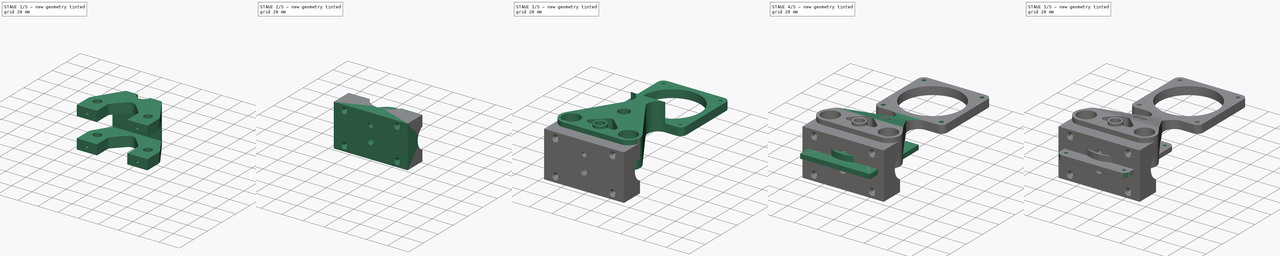
[diagram: build sequence overview — one tinted view per stage of 5, left to right]
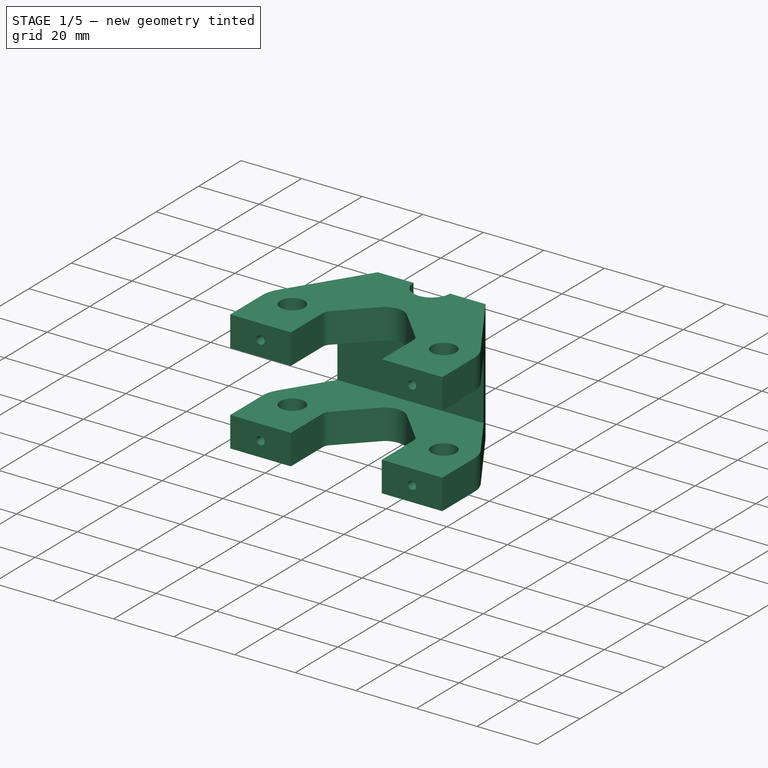
[diagram: stage 1 of 5 — iso view after this stage's code; geometry added in this stage tinted green]
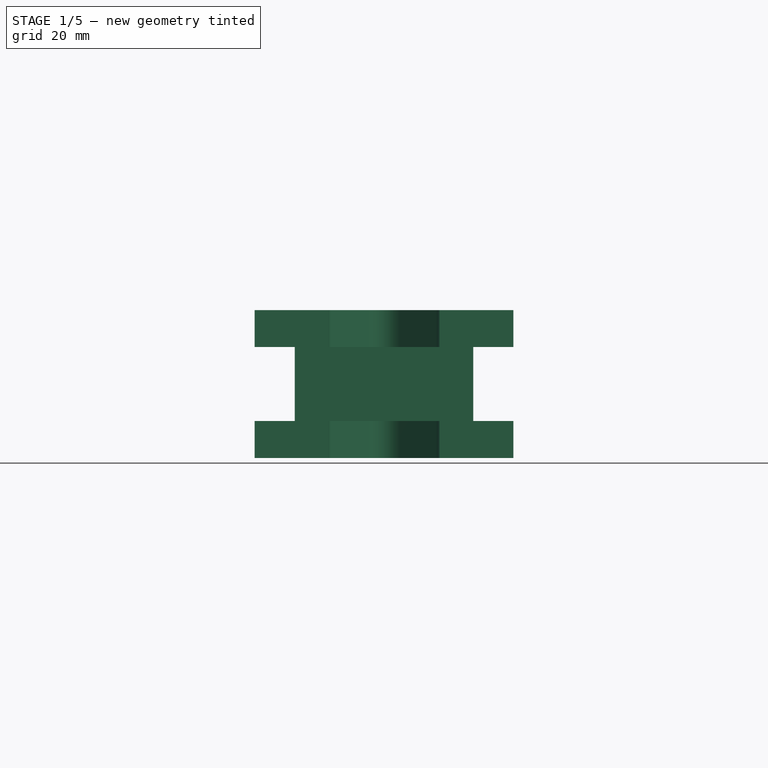
[diagram: stage 1 of 5 — front view after this stage's code; geometry added in this stage tinted green]
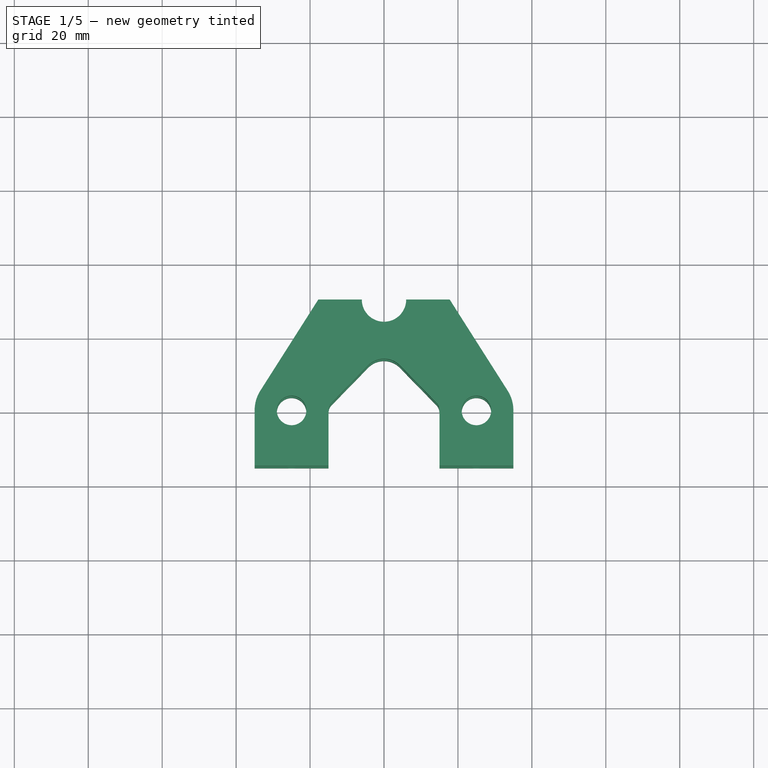
[diagram: stage 1 of 5 — top view after this stage's code; geometry added in this stage tinted green]
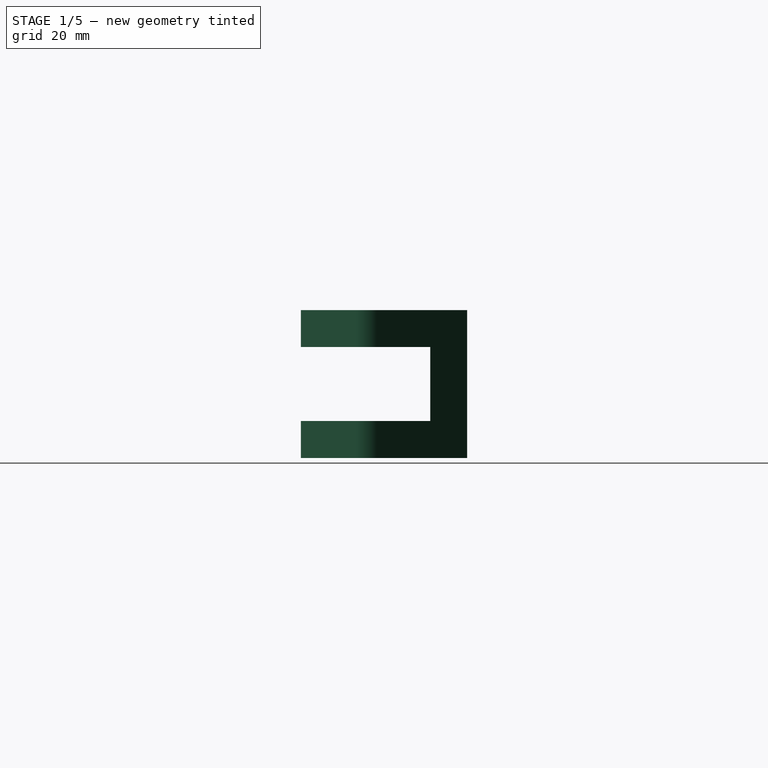
[diagram: stage 1 of 5 — right view after this stage's code; geometry added in this stage tinted green]
FCSTD DOCUMENT  (FreeCAD 1.0R39109 (Git))
Label: focus-system
License: All rights reserved
LicenseURL: http://en.wikipedia.org/wiki/All_rights_reserved
objects: Sketcher::SketchObject×33, PartDesign::Pocket×16, PartDesign::Pad×11, PartDesign::Body×7, PartDesign::Hole×5, PartDesign::Fillet×4, PartDesign::SubShapeBinder×4, PartDesign::Mirrored×2, PartDesign::Chamfer×2, PartDesign::SubtractiveHelix×1, PartDesign::Plane×1, PartDesign::PolarPattern×1
note: 201 computed .brp shape members not serialized (recipe doc carries the construction recipe); baked Part::Feature solids carry a one-line shape summary decoded from their .brp

FEATURE [PartDesign::Pad] Pad005
  Direction = (0,0,1)
  Length = 14
  Length2 = 10
  Profile = -> Sketch006
  ReferenceAxis = -> Sketch006 [N_Axis]
  Suppressed = false
  Type = 0
FEATURE [Sketcher::SketchObject] Sketch012
  ArcFitTolerance = 1e-06
  AttachmentSupport = -> [Pad005]
  ExternalGeometry = -> [Pad005]
  FullyConstrained = true
  MakeInternals = false
  MapMode = 5
  Placement = pos=(0,0,0) rot=(1,0,0;3.14159rad)
  sketch-geometry (1):
    g0: Circle CenterX=0 CenterY=-30 CenterZ=0 NormalX=0 NormalY=0 NormalZ=1 AngleXU=0 Radius=9.5
  constraints (2):
    c: Coincident(g0,g-3)
    c: Diameter(g0) = 19
FEATURE [PartDesign::Pocket] Pocket003
  BaseFeature = -> Pad005
  Direction = (0,0,1)
  Length = 6
  Length2 = 5
  Profile = -> Sketch012
  ReferenceAxis = -> Sketch012 [N_Axis]
  Suppressed = false
  Type = 0
FEATURE [PartDesign::Body] Body004  label="plate-bracket"
  AllowCompound = false
  Group = -> [Binder001,Binder002,Sketch019,Pad009,Sketch020,Pad010,Sketch021,Pocket006,Fillet002,Sketch022,Pocket007,Sketch023,Pocket008,DatumPlane,Sketch024,Pocket009,Mirrored,Sketch025,Hole002]
  Origin = -> Origin004
  Tip = -> Hole002
FEATURE [PartDesign::Pocket] Pocket005
  BaseFeature = -> Pocket003
  Direction = (0,1,-2e-16)
  Length = 8
  Length2 = 5
  Profile = -> Sketch014
  ReferenceAxis = -> Sketch014 [N_Axis]
  Suppressed = false
  Type = 0
FEATURE [PartDesign::Body] Body002  label="focus-knob"
  AllowCompound = false
  Group = -> [Sketch007,Pad003,Sketch008,Pad004,Pad011,Sketch009,Pocket,Sketch010,Pocket001,Chamfer,Chamfer001,Sketch011,Pocket002,PolarPattern,Sketch026]
  Origin = -> Origin002
  Tip = -> PolarPattern
FEATURE [PartDesign::Body] Body005  label="35mm-holder"
  AllowCompound = false
  Origin = -> Origin005
FEATURE [PartDesign::Pad] Pad012
  Direction = (0,0,1)
  Length = 40
  Length2 = 10
  Midplane = true
  Profile = -> Sketch018
  ReferenceAxis = -> Sketch018 [N_Axis]
  Suppressed = false
  Type = 0
FEATURE [Sketcher::SketchObject] Sketch027
  ArcFitTolerance = 1e-06
  AttachmentSupport = -> [XY_Plane003]
  ExternalGeometry = -> [Pad012]
  FullyConstrained = true
  MakeInternals = false
  MapMode = 5
  sketch-geometry (4):
    g0: LineSegment StartX=-50 StartY=20 StartZ=0 EndX=-50 EndY=-30 EndZ=0
    g1: LineSegment StartX=-50 StartY=-30 StartZ=0 EndX=50 EndY=-30 EndZ=0
    g2: LineSegment StartX=50 StartY=-30 StartZ=0 EndX=50 EndY=20 EndZ=0
    g3: LineSegment StartX=50 StartY=20 StartZ=0 EndX=-50 EndY=20 EndZ=0
  constraints (11):
    c: Coincident(g0,g1)
    c: Coincident(g1,g2)
    c: Coincident(g2,g3)
    c: Coincident(g3,g0)
    c: Vertical(g0)
    c: Vertical(g2)
    c: Horizontal(g1)
    c: Symmetric(g0,g2,g-2)
    c: Distance(g-3,g3) = 10
    c: Distance(g1,g1) = 100
    c: DistanceY(g0,g0) = 50
FEATURE [PartDesign::Pocket] Pocket010
  BaseFeature = -> Pad012
  Direction = (0,0,-1)
  Length = 20
  Length2 = 5
  Midplane = true
  Profile = -> Sketch027
  ReferenceAxis = -> Sketch027 [N_Axis]
  Suppressed = false
  Type = 0
FEATURE [Sketcher::SketchObject] Sketch028
  ArcFitTolerance = 1e-06
  AttachmentSupport = -> [Pocket010]
  ExternalGeometry = -> [Pocket010]
  FullyConstrained = true
  MakeInternals = false
  MapMode = 5
  Placement = pos=(9.1e-15,30,0) rot=(0,0.707107,0.707107;3.14159rad)
  sketch-geometry (5):
    g0: LineSegment [constr] StartX=-33.4387 StartY=15 StartZ=0 EndX=0 EndY=15 EndZ=0
    g1: Circle CenterX=-12.5 CenterY=15 CenterZ=0 NormalX=0 NormalY=0 NormalZ=1 AngleXU=0 Radius=1.35
    g2: Circle CenterX=12.5 CenterY=15 CenterZ=0 NormalX=0 NormalY=0 NormalZ=1 AngleXU=0 Radius=1.35
    g3: Circle CenterX=-12.5 CenterY=-15 CenterZ=0 NormalX=0 NormalY=0 NormalZ=1 AngleXU=0 Radius=1.35
    g4: Circle CenterX=12.5 CenterY=-15 CenterZ=0 NormalX=0 NormalY=0 NormalZ=1 AngleXU=0 Radius=1.35
  constraints (13):
    c: PointOnObject(g0,g-6)
    c: PointOnObject(g0,g-2)
    c: PointOnObject(g1,g0)
    c: Equal(g1,g2)
    c: Symmetric(g1,g2,g-2)
    c: DistanceX(g1,g2) = 25
    c: Diameter(g1) = 2.7
    c: Equal(g1,g3)
    c: Symmetric(g1,g3,g-1)
    c: Equal(g2,g4)
    c: Symmetric(g2,g4,g-1)
    c: DistanceY(g3,g1) = 30
    c: Horizontal(g0)
FEATURE [PartDesign::Pocket] Pocket011
  BaseFeature = -> Pocket010
  Direction = (0,-1,2e-16)
  Length = 20
  Length2 = 5
  Profile = -> Sketch028
  ReferenceAxis = -> Sketch028 [N_Axis]
  Suppressed = false
  Type = 0
FEATURE [Sketcher::SketchObject] Sketch029
  ArcFitTolerance = 1e-06
  AttachmentSupport = -> [Pocket010]
  FullyConstrained = true
  MakeInternals = false
  MapMode = 5
  Placement = pos=(0,-15,0) rot=(1,0,0;1.5708rad)
  sketch-geometry (4):
    g0: Circle CenterX=-25 CenterY=15 CenterZ=0 NormalX=0 NormalY=0 NormalZ=1 AngleXU=0 Radius=1.35
    g1: Circle CenterX=25 CenterY=15 CenterZ=0 NormalX=0 NormalY=0 NormalZ=1 AngleXU=0 Radius=1.35
    g2: Circle CenterX=-25 CenterY=-15 CenterZ=0 NormalX=0 NormalY=0 NormalZ=1 AngleXU=0 Radius=1.35
    g3: Circle CenterX=25 CenterY=-15 CenterZ=0 NormalX=0 NormalY=0 NormalZ=1 AngleXU=0 Radius=1.35
  constraints (9):
    c: Diameter(g0) = 2.7
    c: Equal(g0,g1)
    c: Symmetric(g0,g1,g-2)
    c: Equal(g0,g2)
    c: Symmetric(g0,g2,g-1)
    c: Equal(g1,g3)
    c: Symmetric(g1,g3,g-1)
    c: DistanceX(g0,g1) = 50
    c: DistanceY(g3,g1) = 30
FEATURE [PartDesign::Pocket] Pocket012
  BaseFeature = -> Pocket011
  Direction = (0,1,-2e-16)
  Length = 10
  Length2 = 5
  Profile = -> Sketch029
  ReferenceAxis = -> Sketch029 [N_Axis]
  Suppressed = false
  Type = 0
FEATURE [Sketcher::SketchObject] Sketch030
  ArcFitTolerance = 1e-06
  AttachmentSupport = -> [Pocket012]
  ExternalGeometry = -> [Pocket012]
  FullyConstrained = true
  MakeInternals = false
  MapMode = 5
  Placement = pos=(-35,-1.10792e-06,0) rot=(0.57735,-0.57735,-0.57735;2.0944rad)
  sketch-geometry (2):
    g0: Circle CenterX=-1.10792e-06 CenterY=15 CenterZ=0 NormalX=0 NormalY=0 NormalZ=1 AngleXU=0 Radius=1.35
    g1: Circle CenterX=-1.10792e-06 CenterY=-15 CenterZ=0 NormalX=0 NormalY=0 NormalZ=1 AngleXU=0 Radius=1.35
  constraints (4):
    c: Symmetric(g-3,g-4,g0)
    c: Diameter(g0) = 2.7
    c: Equal(g0,g1)
    c: Symmetric(g0,g1,g-1)
FEATURE [PartDesign::Pocket] Pocket013
  BaseFeature = -> Pocket012
  Direction = (1,3.16548e-08,3e-16)
  Length = 9
  Length2 = 5
  Profile = -> Sketch030
  ReferenceAxis = -> Sketch030 [N_Axis]
  Suppressed = false
  Type = 0
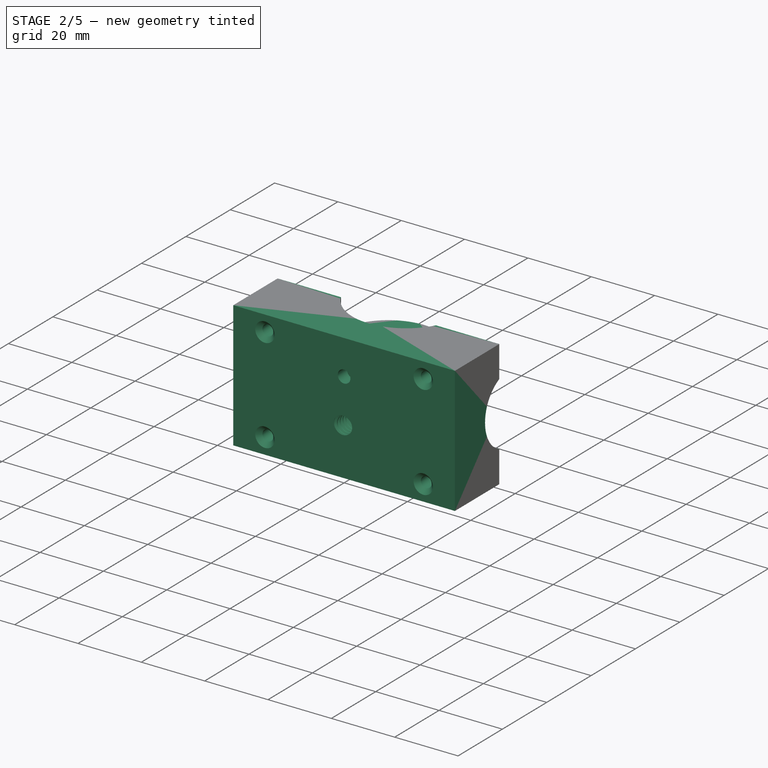
[diagram: stage 2 of 5 — iso view after this stage's code; geometry added in this stage tinted green]
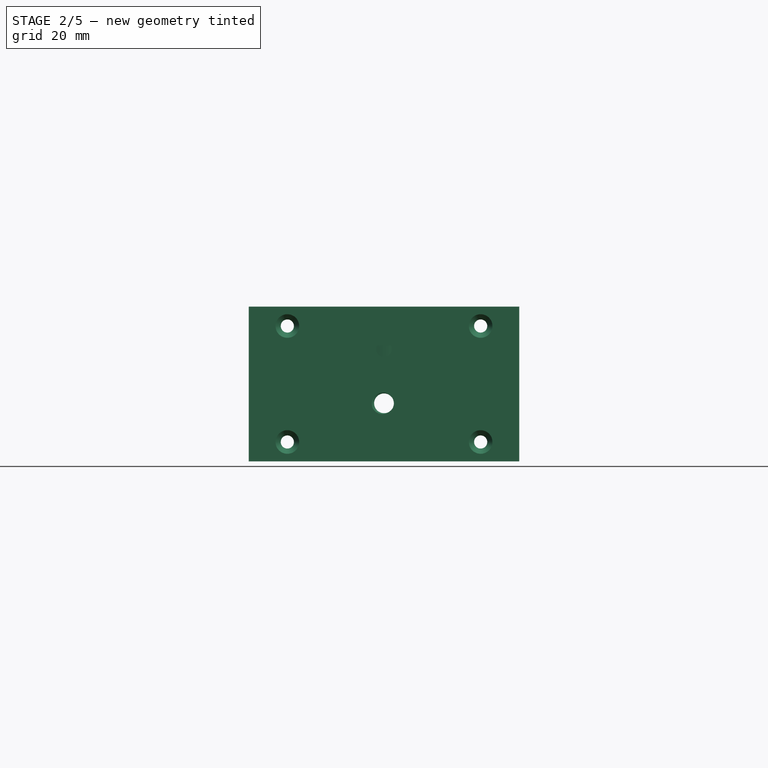
[diagram: stage 2 of 5 — front view after this stage's code; geometry added in this stage tinted green]
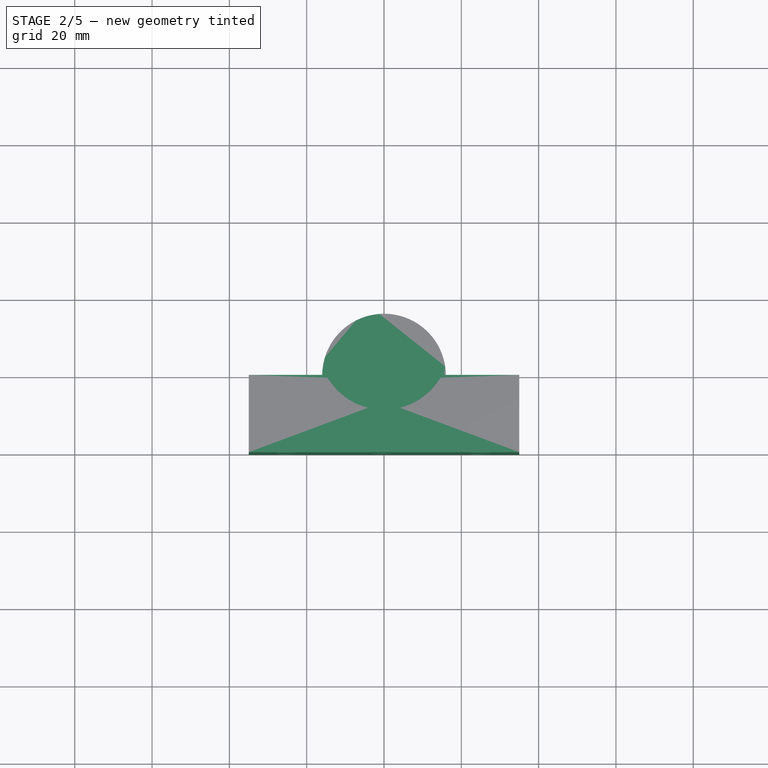
[diagram: stage 2 of 5 — top view after this stage's code; geometry added in this stage tinted green]
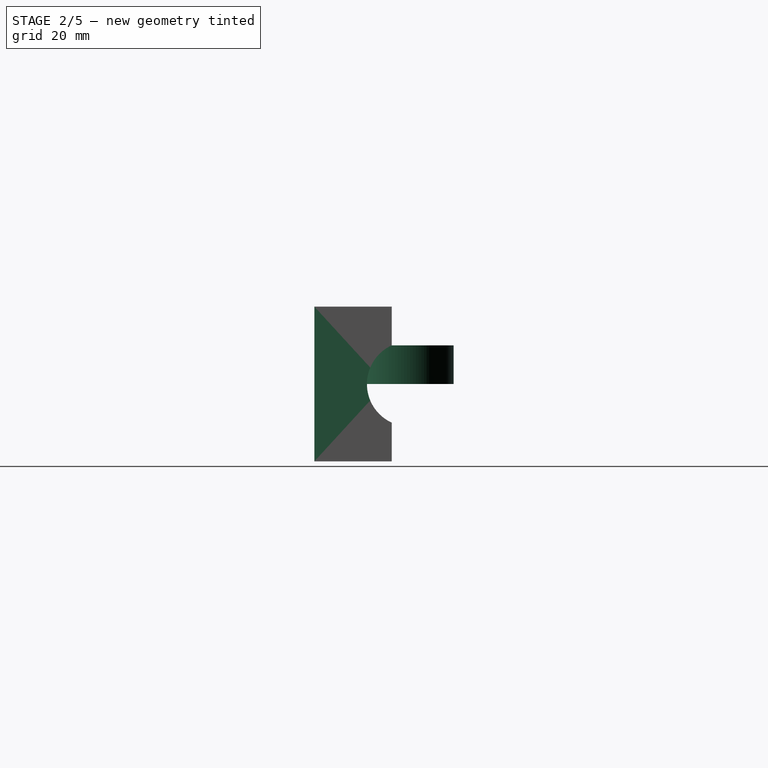
[diagram: stage 2 of 5 — right view after this stage's code; geometry added in this stage tinted green]
FEATURE [PartDesign::Body] Body  label="m39-plate"
  AllowCompound = false
  Group = -> [Sketch,Pad,Sketch001,Pad001,Sketch002,Hole,Sketch003,SubtractiveHelix,Fillet,Sketch004,Hole001,Sketch005,Pad002,Fillet001]
  Origin = -> Origin
  Tip = -> Fillet001
FEATURE [Sketcher::SketchObject] Sketch006
  ArcFitTolerance = 1e-06
  AttachmentSupport = -> [XY_Plane001]
  FullyConstrained = true
  MakeInternals = false
  MapMode = 5
  sketch-geometry (9):
    g0: ArcOfCircle CenterX=-25 CenterY=0 CenterZ=0 NormalX=0 NormalY=0 NormalZ=1 AngleXU=0 Radius=10 StartAngle=2.57524 EndAngle=4.71239
    g1: ArcOfCircle CenterX=25 CenterY=0 CenterZ=0 NormalX=0 NormalY=0 NormalZ=1 AngleXU=0 Radius=10 StartAngle=4.71239 EndAngle=6.84953
    g2: ArcOfCircle CenterX=0 CenterY=30 CenterZ=0 NormalX=0 NormalY=0 NormalZ=1 AngleXU=0 Radius=15 StartAngle=0.566349 EndAngle=2.57524
    g3: LineSegment StartX=-33.4387 StartY=5.36555 StartZ=0 EndX=-12.658 EndY=38.0483 EndZ=0
    g4: LineSegment StartX=12.658 StartY=38.0483 StartZ=0 EndX=33.4387 EndY=5.36555 EndZ=0
    g5: LineSegment StartX=25 StartY=-10 StartZ=0 EndX=-25 EndY=-10 EndZ=0
    g6: Circle CenterX=-25 CenterY=0 CenterZ=0 NormalX=0 NormalY=0 NormalZ=1 AngleXU=0 Radius=4
    g7: Circle CenterX=25 CenterY=0 CenterZ=0 NormalX=0 NormalY=0 NormalZ=1 AngleXU=0 Radius=4
    g8: Circle CenterX=0 CenterY=30 CenterZ=0 NormalX=0 NormalY=0 NormalZ=1 AngleXU=0 Radius=6
  constraints (20):
    c: PointOnObject(g0,g-1)
    c: PointOnObject(g2,g-2)
    c: Equal(g0,g1)
    c: Symmetric(g0,g1,g-2)
    c: Diameter(g0) = 20
    c: Distance(g0,g1) = 50
    c: Distance(g2,g-1) = 30
    c: Tangent(g2,g3) = 1.5708
    c: Tangent(g2,g4) = 1.5708
    c: Tangent(g1,g4) = 1.5708
    c: Tangent(g1,g5) = 1.5708
    c: Tangent(g0,g5) = 1.5708
    c: Tangent(g0,g3) = 1.5708
    c: Coincident(g6,g0)
    c: Coincident(g7,g1)
    c: Equal(g7,g6)
    c: Diameter(g6) = 8
    c: Coincident(g8,g2)
    c: Diameter(g8) = 12
    c: Radius(g2) = 15
FEATURE [Sketcher::SketchObject] Sketch007
  ArcFitTolerance = 1e-06
  AttachmentSupport = -> [XY_Plane002]
  FullyConstrained = true
  MakeInternals = false
  MapMode = 5
  sketch-geometry (1):
    g0: Circle CenterX=0 CenterY=0 CenterZ=0 NormalX=0 NormalY=0 NormalZ=1 AngleXU=0 Radius=16
  constraints (2):
    c: Coincident(g0,g-1)
    c: Diameter(g0) = 32
FEATURE [PartDesign::Pad] Pad003
  Direction = (0,0,1)
  Length = 10
  Length2 = 10
  Profile = -> Sketch007
  ReferenceAxis = -> Sketch007 [N_Axis]
  Suppressed = false
  Type = 0
FEATURE [PartDesign::Mirrored] Mirrored001
  BaseFeature = -> Pocket013
  MirrorPlane = -> YZ_Plane003
  Originals = -> [Pocket013]
  Suppressed = false
  TransformMode = 0
FEATURE [PartDesign::Fillet] Fillet003
  Base = -> Mirrored001 [Edge54,Edge70]
  BaseFeature = -> Mirrored001
  Radius = 5
  SupportTransform = false
  Suppressed = false
  UseAllEdges = false
FEATURE [PartDesign::Body] Body003  label="upper-bracket"
  AllowCompound = false
  Group = -> [Binder,Sketch018,Pad012,Sketch027,Pocket010,Sketch028,Pocket011,Sketch029,Pocket012,Sketch030,Pocket013,Mirrored001,Fillet003]
  Origin = -> Origin003
  Tip = -> Fillet003
FEATURE [PartDesign::SubShapeBinder] Binder003
  BindCopyOnChange = 0
  BindMode = 0
  ClaimChildren = false
  Context = -> Body006 [Binder003.]
  Fuse = false
  MakeFace = true
  OffsetFill = false
  OffsetIntersection = false
  OffsetJoinType = 0
  OffsetOpenResult = false
  PartialLoad = false
  Relative = true
  Support = -> [Body003[Fillet003.Face18,Fillet003.Face15,Fillet003.Face34,Fillet003.Face37]]
  _Version = 2
FEATURE [Sketcher::SketchObject] Sketch031
  ArcFitTolerance = 1e-06
  AttachmentSupport = -> [XZ_Plane006]
  ExternalGeometry = -> [Binder003]
  FullyConstrained = true
  MakeInternals = false
  MapMode = 5
  Placement = pos=(0,0,0) rot=(1,0,0;1.5708rad)
  sketch-geometry (4):
    g0: LineSegment StartX=-35 StartY=20 StartZ=0 EndX=-35 EndY=-20 EndZ=0
    g1: LineSegment StartX=-35 StartY=-20 StartZ=0 EndX=35 EndY=-20 EndZ=0
    g2: LineSegment StartX=35 StartY=-20 StartZ=0 EndX=35 EndY=20 EndZ=0
    g3: LineSegment StartX=35 StartY=20 StartZ=0 EndX=-35 EndY=20 EndZ=0
  constraints (10):
    c: Coincident(g0,g1)
    c: Coincident(g1,g2)
    c: Coincident(g2,g3)
    c: Coincident(g3,g0)
    c: Vertical(g0)
    c: Vertical(g2)
    c: Horizontal(g1)
    c: Horizontal(g3)
    c: Coincident(g0,g-3)
    c: Coincident(g1,g-4)
FEATURE [PartDesign::Pad] Pad013
  Direction = (0,-1,2e-16)
  Length = 20
  Length2 = 10
  Placement = pos=(0,0,0) rot=(1,0,0;1.5708rad)
  Profile = -> Sketch031
  ReferenceAxis = -> Sketch031 [N_Axis]
  Suppressed = false
  Type = 0
FEATURE [Sketcher::SketchObject] Sketch032
  ArcFitTolerance = 1e-06
  AttachmentSupport = -> [Pad013]
  ExternalGeometry = -> [Pad013]
  FullyConstrained = true
  MakeInternals = false
  MapMode = 5
  Placement = pos=(-35,0,0) rot=(0.707107,0,-0.707107;3.14159rad)
  sketch-geometry (2):
    g0: ArcOfCircle CenterX=0 CenterY=-4.58258 CenterZ=0 NormalX=0 NormalY=0 NormalZ=1 AngleXU=0 Radius=11 StartAngle=0.4297 EndAngle=2.71189
    g1: LineSegment StartX=-10 StartY=-1.8e-15 StartZ=0 EndX=10 EndY=9e-16 EndZ=0
  constraints (7):
    c: PointOnObject(g0,g-2)
    c: PointOnObject(g0,g-1)
    c: PointOnObject(g0,g-1)
    c: Distance(g0,g-3) = 10
    c: Radius(g0) = 11
    c: Coincident(g1,g0)
    c: Coincident(g1,g0)
FEATURE [PartDesign::Pocket] Pocket014
  BaseFeature = -> Pad013
  Direction = (1,0,2e-16)
  Length = 5
  Length2 = 5
  Placement = pos=(0,0,0) rot=(1,0,0;1.5708rad)
  Profile = -> Sketch032
  ReferenceAxis = -> Sketch032 [N_Axis]
  Suppressed = false
  Type = 1
FEATURE [Sketcher::SketchObject] Sketch033
  ArcFitTolerance = 1e-06
  AttachmentSupport = -> [Pocket014]
  ExternalGeometry = -> [Pocket014]
  FullyConstrained = true
  MakeInternals = false
  MapMode = 5
  Placement = pos=(0,-4.4e-15,-20) rot=(1,0,0;3.14159rad)
  sketch-geometry (2):
    g0: ArcOfCircle CenterX=0 CenterY=-8 CenterZ=0 NormalX=0 NormalY=0 NormalZ=1 AngleXU=0 Radius=17 StartAngle=0.489957 EndAngle=2.65164
    g1: LineSegment StartX=-15 StartY=-1.8e-15 StartZ=0 EndX=15 EndY=0 EndZ=0
  constraints (7):
    c: PointOnObject(g0,g-2)
    c: PointOnObject(g0,g-1)
    c: PointOnObject(g0,g-1)
    c: Coincident(g1,g0)
    c: Coincident(g1,g0)
    c: Distance(g0,g-3) = 20
    c: Radius(g0) = 17
FEATURE [PartDesign::Pocket] Pocket015
  BaseFeature = -> Pocket014
  Direction = (0,0,1)
  Length = 5
  Length2 = 5
  Placement = pos=(0,0,0) rot=(1,0,0;1.5708rad)
  Profile = -> Sketch033
  ReferenceAxis = -> Sketch033 [N_Axis]
  Suppressed = false
  Type = 1
FEATURE [Sketcher::SketchObject] Sketch034
  ArcFitTolerance = 1e-06
  AttachmentSupport = -> [Pocket015]
  ExternalGeometry = -> [Binder003]
  FullyConstrained = true
  MakeInternals = false
  MapMode = 5
  Placement = pos=(0,-20,0) rot=(1,0,0;1.5708rad)
  sketch-geometry (4):
    g0: Circle CenterX=-25 CenterY=15 CenterZ=0 NormalX=0 NormalY=0 NormalZ=1 AngleXU=0 Radius=1.35
    g1: Circle CenterX=25 CenterY=15 CenterZ=0 NormalX=0 NormalY=0 NormalZ=1 AngleXU=0 Radius=1.35
    g2: Circle CenterX=25 CenterY=-15 CenterZ=0 NormalX=0 NormalY=0 NormalZ=1 AngleXU=0 Radius=1.35
    g3: Circle CenterX=-25 CenterY=-15 CenterZ=0 NormalX=0 NormalY=0 NormalZ=1 AngleXU=0 Radius=1.35
  constraints (8):
    c: Coincident(g0,g-3)
    c: Equal(g0,g-3)
    c: Coincident(g1,g-4)
    c: Equal(g1,g-4)
    c: Coincident(g2,g-5)
    c: Equal(g2,g-5)
    c: Coincident(g3,g-6)
    c: Equal(g3,g-6)
FEATURE [PartDesign::Hole] Hole003
  BaseFeature = -> Pocket015
  CustomThreadClearance = 0
  Depth = 25
  DepthType = 0
  Diameter = 3.4
  DrillForDepth = false
  DrillPoint = 1
  DrillPointAngle = 118
  HoleCutCountersinkAngle = 90
  HoleCutCustomValues = false
  HoleCutDepth = 0
  HoleCutDiameter = 6.1
  HoleCutType = 2
  ModelThread = false
  Placement = pos=(0,0,0) rot=(1,0,0;1.5708rad)
  Profile = -> Sketch034
  Suppressed = false
  Tapered = false
  TaperedAngle = 90
  ThreadClass = 0
  ThreadDepth = 25
  ThreadDepthType = 0
  ThreadDirection = 0
  ThreadFit = 0
  ThreadSize = 9
  ThreadType = 1
  Threaded = false
  UseCustomThreadClearance = false
FEATURE [Sketcher::SketchObject] Sketch035
  ArcFitTolerance = 1e-06
  AttachmentSupport = -> [Hole003]
  FullyConstrained = true
  MakeInternals = false
  MapMode = 5
  Placement = pos=(0,-20,0) rot=(1,0,0;1.5708rad)
  sketch-geometry (1):
    g0: Circle CenterX=0 CenterY=-5 CenterZ=0 NormalX=0 NormalY=0 NormalZ=1 AngleXU=0 Radius=0.5
  constraints (3):
    c: PointOnObject(g0,g-2)
    c: Diameter(g0) = 1
    c: DistanceY(g0,g-1) = 5
FEATURE [PartDesign::Hole] Hole004
  BaseFeature = -> Hole003
  CustomThreadClearance = 0
  Depth = 25
  DepthType = 0
  Diameter = 5.1
  DrillForDepth = false
  DrillPoint = 1
  DrillPointAngle = 118
  HoleCutCountersinkAngle = 90
  HoleCutCustomValues = false
  HoleCutDepth = 0
  HoleCutDiameter = 6.1
  HoleCutType = 0
  ModelThread = true
  Placement = pos=(0,0,0) rot=(1,0,0;1.5708rad)
  Profile = -> Sketch035
  Suppressed = false
  Tapered = false
  TaperedAngle = 90
  ThreadClass = 0
  ThreadDepth = 25
  ThreadDepthType = 0
  ThreadDirection = 0
  ThreadFit = 0
  ThreadSize = 9
  ThreadType = 3
  Threaded = true
  UseCustomThreadClearance = false
FEATURE [Sketcher::SketchObject] Sketch036
  ArcFitTolerance = 1e-06
  AttachmentSupport = -> [Hole004]
  FullyConstrained = true
  MakeInternals = false
  MapMode = 5
  Placement = pos=(0,-20,0) rot=(1,0,0;1.5708rad)
  sketch-geometry (1):
    g0: Circle CenterX=0 CenterY=9 CenterZ=0 NormalX=0 NormalY=0 NormalZ=1 AngleXU=0 Radius=2
  constraints (3):
    c: PointOnObject(g0,g-2)
    c: Diameter(g0) = 4
    c: Distance(g0,g-1) = 9
FEATURE [PartDesign::Pocket] Pocket016
  BaseFeature = -> Hole004
  Direction = (0,1,-2e-16)
  Length = 5
  Length2 = 5
  Placement = pos=(0,0,0) rot=(1,0,0;1.5708rad)
  Profile = -> Sketch036
  ReferenceAxis = -> Sketch036 [N_Axis]
  Suppressed = false
  Type = 0
FEATURE [PartDesign::Body] Body006  label="tripod-mount"
  AllowCompound = false
  Group = -> [Binder003,Sketch031,Pad013,Sketch032,Pocket014,Sketch033,Pocket015,Sketch034,Hole003,Sketch035,Hole004,Sketch036,Pocket016]
  Origin = -> Origin006
  Tip = -> Pocket016
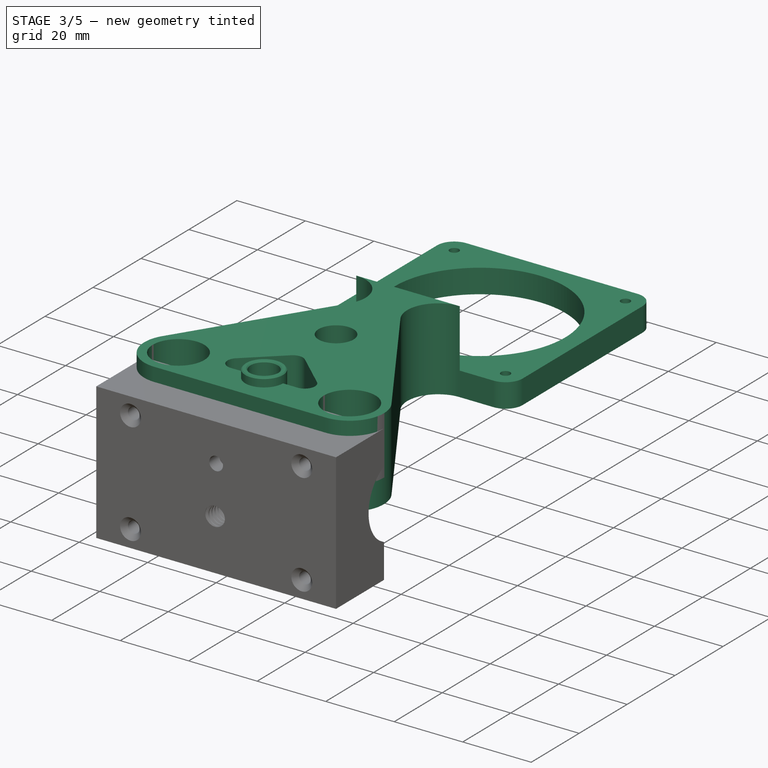
[diagram: stage 3 of 5 — iso view after this stage's code; geometry added in this stage tinted green]
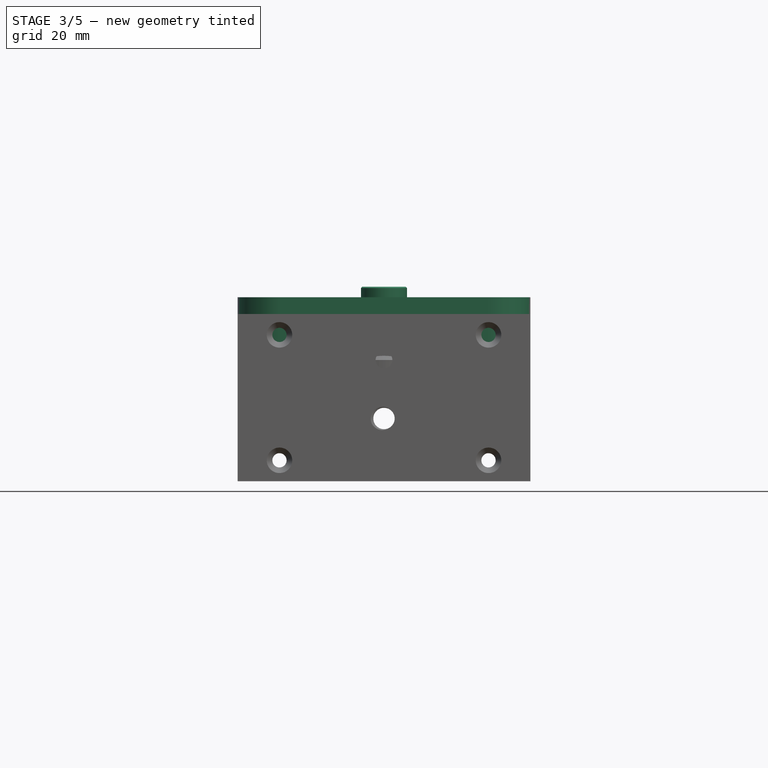
[diagram: stage 3 of 5 — front view after this stage's code; geometry added in this stage tinted green]
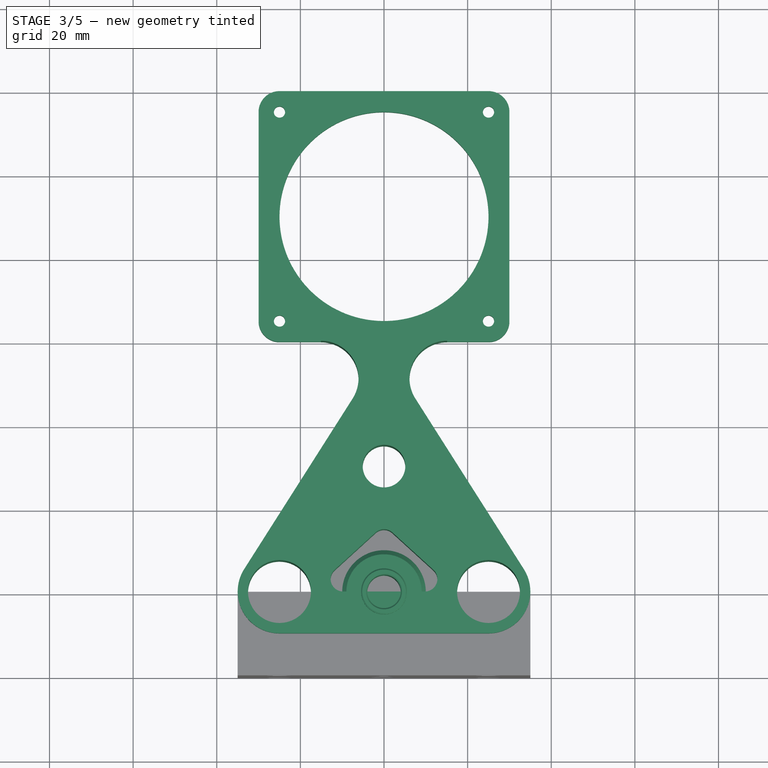
[diagram: stage 3 of 5 — top view after this stage's code; geometry added in this stage tinted green]
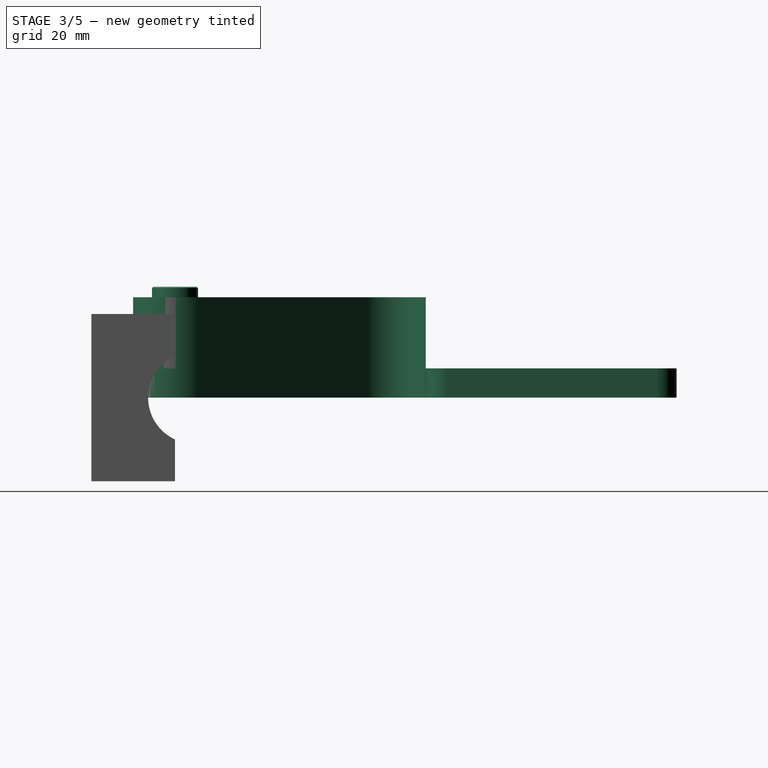
[diagram: stage 3 of 5 — right view after this stage's code; geometry added in this stage tinted green]
FEATURE [Sketcher::SketchObject] Sketch008
  ArcFitTolerance = 1e-06
  AttachmentSupport = -> [Pad003]
  FullyConstrained = true
  MakeInternals = false
  MapMode = 5
  Placement = pos=(0,0,10) rot=(0,0,1;0rad)
  sketch-geometry (1):
    g0: Circle CenterX=0 CenterY=0 CenterZ=0 NormalX=0 NormalY=0 NormalZ=1 AngleXU=0 Radius=10
  constraints (2):
    c: Coincident(g0,g-1)
    c: Diameter(g0) = 20
FEATURE [PartDesign::Pad] Pad004
  BaseFeature = -> Pad003
  Direction = (0,0,1)
  Length = 8
  Length2 = 10
  Profile = -> Sketch008
  ReferenceAxis = -> Sketch008 [N_Axis]
  Suppressed = false
  Type = 0
FEATURE [Sketcher::SketchObject] Sketch014
  ArcFitTolerance = 1e-06
  AttachmentSupport = -> [Pocket003]
  FullyConstrained = true
  MakeInternals = false
  MapMode = 5
  Placement = pos=(0,-10,0) rot=(1,0,0;1.5708rad)
  sketch-geometry (3):
    g0: Circle CenterX=-25 CenterY=7 CenterZ=0 NormalX=0 NormalY=0 NormalZ=1 AngleXU=0 Radius=1.35
    g1: Circle CenterX=25 CenterY=7 CenterZ=0 NormalX=0 NormalY=0 NormalZ=1 AngleXU=0 Radius=1.35
    g2: LineSegment [constr] StartX=-25 StartY=7 StartZ=0 EndX=25 EndY=7 EndZ=0
  constraints (7):
    c: Symmetric(g-4,g-4,g0)
    c: PointOnObject(g1,g-3)
    c: Equal(g1,g0)
    c: Diameter(g0) = 2.7
    c: Coincident(g2,g0)
    c: Coincident(g2,g1)
    c: Horizontal(g2)
FEATURE [PartDesign::SubShapeBinder] Binder
  BindCopyOnChange = 0
  BindMode = 0
  ClaimChildren = false
  Context = -> Body003 [Binder.]
  Fuse = false
  MakeFace = true
  OffsetFill = false
  OffsetIntersection = false
  OffsetJoinType = 0
  OffsetOpenResult = false
  PartialLoad = false
  Relative = true
  Support = -> [Body001[Pad008.]]
  _Version = 2
FEATURE [Sketcher::SketchObject] Sketch018
  ArcFitTolerance = 1e-06
  AttachmentSupport = -> [XY_Plane003]
  ExternalGeometry = -> [Binder]
  FullyConstrained = true
  MakeInternals = false
  MapMode = 5
  sketch-geometry (21):
    g0: Circle CenterX=-25 CenterY=0 CenterZ=0 NormalX=0 NormalY=0 NormalZ=1 AngleXU=0 Radius=4
    g1: Circle CenterX=25 CenterY=0 CenterZ=0 NormalX=0 NormalY=0 NormalZ=1 AngleXU=0 Radius=4
    g2: LineSegment StartX=-33.4387 StartY=5.36555 StartZ=0 EndX=-17.7753 EndY=30 EndZ=0
    g3: LineSegment StartX=33.4387 StartY=5.36555 StartZ=0 EndX=17.7753 EndY=30 EndZ=0
    g4: LineSegment [constr] StartX=-17.7753 StartY=30 StartZ=0 EndX=17.7753 EndY=30 EndZ=0
    g5: ArcOfCircle CenterX=0 CenterY=30 CenterZ=0 NormalX=0 NormalY=0 NormalZ=1 AngleXU=0 Radius=6 StartAngle=3.14159 EndAngle=6.28319
    g6: LineSegment StartX=-6 StartY=30 StartZ=0 EndX=-17.7753 EndY=30 EndZ=0
    g7: LineSegment StartX=6 StartY=30 StartZ=0 EndX=17.7753 EndY=30 EndZ=0
    g8: ArcOfCircle CenterX=-2e-16 CenterY=8 CenterZ=0 NormalX=0 NormalY=0 NormalZ=1 AngleXU=0 Radius=6 StartAngle=0.773251 EndAngle=2.36834
    g9: LineSegment StartX=-14.1469 StartY=2.0954 StartZ=0 EndX=-4.29386 EndY=12.1908 EndZ=0
    g10: LineSegment StartX=4.29386 StartY=12.1908 StartZ=0 EndX=14.1469 EndY=2.0954 EndZ=0
    g11: ArcOfCircle CenterX=-25 CenterY=0 CenterZ=0 NormalX=0 NormalY=0 NormalZ=1 AngleXU=0 Radius=10 StartAngle=2.57524 EndAngle=3.14159
    g12: ArcOfCircle CenterX=25 CenterY=0 CenterZ=0 NormalX=0 NormalY=0 NormalZ=1 AngleXU=0 Radius=10 StartAngle=0 EndAngle=0.566349
    g13: ArcOfCircle CenterX=-12 CenterY=0 CenterZ=0 NormalX=0 NormalY=0 NormalZ=1 AngleXU=0 Radius=3 StartAngle=2.36834 EndAngle=3.14159
    g14: ArcOfCircle CenterX=12 CenterY=0 CenterZ=0 NormalX=0 NormalY=0 NormalZ=1 AngleXU=0 Radius=3 StartAngle=0 EndAngle=0.773251
    g15: LineSegment StartX=-35 StartY=1.2e-15 StartZ=0 EndX=-35 EndY=-15 EndZ=0
    g16: LineSegment StartX=35 StartY=0 StartZ=0 EndX=35 EndY=-15 EndZ=0
    g17: LineSegment StartX=-15 StartY=4e-16 StartZ=0 EndX=-15 EndY=-15 EndZ=0
    g18: LineSegment StartX=-15 StartY=-15 StartZ=0 EndX=-35 EndY=-15 EndZ=0
    g19: LineSegment StartX=35 StartY=-15 StartZ=0 EndX=15 EndY=-15 EndZ=0
    g20: LineSegment StartX=15 StartY=-15 StartZ=0 EndX=15 EndY=0 EndZ=0
  constraints (54):
    c: Equal(g0,g-10)
    c: Equal(g1,g-9)
    c: Coincident(g1,g-9)
    c: PointOnObject(g4,g-7)
    c: PointOnObject(g4,g-3)
    c: PointOnObject(g-8,g4)
    c: Horizontal(g4)
    c: Coincident(g2,g4)
    c: Coincident(g3,g4)
    c: Coincident(g5,g-11)
    c: PointOnObject(g5,g4)
    c: PointOnObject(g5,g4)
    c: Coincident(g6,g5)
    c: Coincident(g7,g5)
    c: Coincident(g7,g3)
    c: Coincident(g2,g6)
    c: Equal(g8,g5)
    c: Equal(g5,g-11)
    c: Symmetric(g8,g8,g-2)
    c: Distance(g8,g5) = 10
    c: Coincident(g9,g8)
    c: Tangent(g10,g8) = 1.5708
    c: Coincident(g0,g-10)
    c: Symmetric(g9,g10,g-2)
    c: Coincident(g2,g-7)
    c: Coincident(g3,g-4)
    c: Coincident(g11,g0)
    c: Coincident(g11,g2)
    c: PointOnObject(g11,g-1)
    c: Coincident(g12,g1)
    c: Coincident(g12,g3)
    c: PointOnObject(g12,g-1)
    c: Tangent(g13,g9) = 1.5708
    c: PointOnObject(g13,g-1)
    c: Coincident(g14,g10)
    c: PointOnObject(g14,g-1)
    c: Symmetric(g11,g13,g0)
    c: Symmetric(g13,g14,g-2)
    c: Radius(g13) = 3
    c: Symmetric(g15,g16,g-2)
    c: Coincident(g15,g11)
    c: Tangent(g15,g-6)
    c: Coincident(g16,g12)
    c: Coincident(g17,g13)
    c: Vertical(g17)
    c: Coincident(g18,g17)
    c: Coincident(g18,g15)
    c: Horizontal(g18)
    c: Coincident(g19,g16)
    c: Horizontal(g19)
    c: Coincident(g20,g19)
    c: Coincident(g20,g14)
    c: Vertical(g20)
    c: Distance(g16,g16) = 15
FEATURE [PartDesign::SubShapeBinder] Binder001
  BindCopyOnChange = 0
  BindMode = 0
  ClaimChildren = false
  Context = -> Body004 [Binder001.]
  Fuse = false
  MakeFace = true
  OffsetFill = false
  OffsetIntersection = false
  OffsetJoinType = 0
  OffsetOpenResult = false
  PartialLoad = false
  Relative = true
  Support = -> [Body001[Pad008.]]
  _Version = 2
FEATURE [PartDesign::SubShapeBinder] Binder002
  BindCopyOnChange = 0
  BindMode = 0
  ClaimChildren = false
  Context = -> Body004 [Binder002.]
  Fuse = false
  MakeFace = true
  OffsetFill = false
  OffsetIntersection = false
  OffsetJoinType = 0
  OffsetOpenResult = false
  PartialLoad = false
  Placement = pos=(0,90,0) rot=(0,0,1;0rad)
  Relative = true
  Support = -> [Body[Fillet001.]]
  _Version = 2
FEATURE [Sketcher::SketchObject] Sketch019
  ArcFitTolerance = 1e-06
  AttachmentSupport = -> [XY_Plane004]
  ExternalGeometry = -> [Binder001]
  FullyConstrained = true
  MakeInternals = false
  MapMode = 5
  sketch-geometry (33):
    g0: Circle CenterX=0 CenterY=90 CenterZ=0 NormalX=0 NormalY=0 NormalZ=1 AngleXU=0 Radius=25
    g1: Circle CenterX=-25 CenterY=115 CenterZ=0 NormalX=0 NormalY=0 NormalZ=1 AngleXU=0 Radius=1.35
    g2: Circle CenterX=25 CenterY=115 CenterZ=0 NormalX=0 NormalY=0 NormalZ=1 AngleXU=0 Radius=1.35
    g3: Circle CenterX=25 CenterY=65 CenterZ=0 NormalX=0 NormalY=0 NormalZ=1 AngleXU=0 Radius=1.35
    g4: Circle CenterX=-25 CenterY=65 CenterZ=0 NormalX=0 NormalY=0 NormalZ=1 AngleXU=0 Radius=1.35
    g5: LineSegment StartX=-25 StartY=120 StartZ=0 EndX=25 EndY=120 EndZ=0
    g6: LineSegment StartX=-25 StartY=60 StartZ=0 EndX=-15.1005 EndY=60 EndZ=0
    g7: LineSegment StartX=30 StartY=115 StartZ=0 EndX=30 EndY=65 EndZ=0
    g8: LineSegment StartX=-30 StartY=115 StartZ=0 EndX=-30 EndY=65 EndZ=0
    g9: ArcOfCircle CenterX=-25 CenterY=115 CenterZ=0 NormalX=0 NormalY=0 NormalZ=1 AngleXU=0 Radius=5 StartAngle=1.5708 EndAngle=3.14159
    g10: ArcOfCircle CenterX=25 CenterY=115 CenterZ=0 NormalX=0 NormalY=0 NormalZ=1 AngleXU=0 Radius=5 StartAngle=3.397e-13 EndAngle=1.5708
    g11: ArcOfCircle CenterX=25 CenterY=65 CenterZ=0 NormalX=0 NormalY=0 NormalZ=1 AngleXU=0 Radius=5 StartAngle=4.71239 EndAngle=6.28319
    g12: ArcOfCircle CenterX=-25 CenterY=65 CenterZ=0 NormalX=0 NormalY=0 NormalZ=1 AngleXU=0 Radius=5 StartAngle=3.14159 EndAngle=4.71239
    g13: LineSegment StartX=-33.4387 StartY=5.36555 StartZ=0 EndX=-7.5 EndY=46.1605 EndZ=0
    g14: LineSegment StartX=33.4387 StartY=5.36555 StartZ=0 EndX=7.5 EndY=46.1605 EndZ=0
    g15: LineSegment StartX=-25 StartY=-10 StartZ=0 EndX=25 EndY=-10 EndZ=0
    g16: ArcOfCircle CenterX=-25 CenterY=3e-16 CenterZ=0 NormalX=0 NormalY=0 NormalZ=1 AngleXU=0 Radius=10 StartAngle=2.57524 EndAngle=4.71239
    g17: ArcOfCircle CenterX=25 CenterY=5e-16 CenterZ=0 NormalX=0 NormalY=0 NormalZ=1 AngleXU=0 Radius=10 StartAngle=4.71239 EndAngle=6.84953
    g18: ArcOfCircle CenterX=-15.1005 CenterY=50.9932 CenterZ=0 NormalX=0 NormalY=0 NormalZ=1 AngleXU=0 Radius=9.00682 StartAngle=5.71684 EndAngle=7.85398
    g19: ArcOfCircle CenterX=15.1005 CenterY=50.9932 CenterZ=0 NormalX=0 NormalY=0 NormalZ=1 AngleXU=0 Radius=9.00682 StartAngle=1.5708 EndAngle=3.70794
    g20: LineSegment StartX=15.1005 StartY=60 StartZ=0 EndX=25 EndY=60 EndZ=0
    g21: Circle CenterX=0 CenterY=30 CenterZ=0 NormalX=0 NormalY=0 NormalZ=1 AngleXU=0 Radius=5.1
    g22: Circle CenterX=-25 CenterY=3e-16 CenterZ=0 NormalX=0 NormalY=0 NormalZ=1 AngleXU=0 Radius=7.525
    g23: Circle CenterX=25 CenterY=5e-16 CenterZ=0 NormalX=0 NormalY=0 NormalZ=1 AngleXU=0 Radius=7.525
    g24: LineSegment StartX=-9.76761 StartY=0 StartZ=0 EndX=9.76761 EndY=0 EndZ=0
    g25: LineSegment StartX=-11.7882 StartY=5.21752 StartZ=0 EndX=-2.02055 EndY=14.1175 EndZ=0
    g26: LineSegment StartX=2.02055 StartY=14.1175 StartZ=0 EndX=11.7882 EndY=5.21752 EndZ=0
    g27: ArcOfCircle CenterX=0 CenterY=11.9 CenterZ=0 NormalX=0 NormalY=0 NormalZ=1 AngleXU=0 Radius=3 StartAngle=0.831842 EndAngle=2.30975
    g28: GeomPoint [constr] X=0 Y=15.9586 Z=0
    g29: ArcOfCircle CenterX=-9.76761 CenterY=3 CenterZ=0 NormalX=0 NormalY=0 NormalZ=1 AngleXU=0 Radius=3 StartAngle=2.30975 EndAngle=4.71239
    g30: GeomPoint [constr] X=-17.5143 Y=0 Z=0
    g31: ArcOfCircle CenterX=9.76761 CenterY=3 CenterZ=0 NormalX=0 NormalY=0 NormalZ=1 AngleXU=0 Radius=3 StartAngle=4.71239 EndAngle=7.11503
    g32: GeomPoint [constr] X=17.5143 Y=0 Z=0
  constraints (76):
    c: Coincident(g0,g-18)
    c: Coincident(g1,g-17)
    c: Coincident(g2,g-16)
    c: Coincident(g3,g-15)
    c: Coincident(g4,g-11)
    c: Equal(g4,g1)
    c: Equal(g1,g2)
    c: Equal(g2,g3)
    c: Diameter(g1) = 2.7
    c: Coincident(g5,g-17)
    c: Coincident(g5,g-16)
    c: Coincident(g20,g-15)
    c: Coincident(g6,g-11)
    c: Coincident(g8,g-17)
    c: Coincident(g8,g-11)
    c: Coincident(g7,g-16)
    c: Coincident(g7,g-15)
    c: Coincident(g9,g8)
    c: Coincident(g10,g5)
    c: Coincident(g11,g7)
    c: Coincident(g12,g6)
    c: Coincident(g12,g8)
    c: Equal(g12,g-11)
    c: Coincident(g10,g7)
    c: Equal(g10,g-16)
    c: Coincident(g9,g5)
    c: Equal(g9,g-17)
    c: Coincident(g11,g20)
    c: Equal(g-15,g11)
    c: Coincident(g13,g-5)
    c: Coincident(g14,g-7)
    c: Coincident(g15,g-4)
    c: Coincident(g15,g-7)
    c: Coincident(g16,g15)
    c: Coincident(g16,g13)
    c: Coincident(g17,g14)
    c: Coincident(g17,g15)
    c: Equal(g17,g-7)
    c: Equal(g16,g-4)
    c: PointOnObject(g-5,g13)
    c: Symmetric(g14,g13,g-2)
    c: Distance(g13,g14) = 15
    c: Coincident(g19,g14)
    c: Symmetric(g18,g19,g-2)
    c: Tangent(g18,g13) = -1.5708
    c: Tangent(g6,g18) = 1.5708
    c: Horizontal(g6)
    c: Coincident(g19,g20)
    c: PointOnObject(g19,g-10)
    c: Coincident(g21,g-19)
    c: Diameter(g21) = 10.2
    c: Coincident(g22,g16)
    c: Coincident(g23,g17)
    c: Equal(g23,g22)
    c: Diameter(g22) = 15.05
    c: PointOnObject(g30,g-1)
    c: PointOnObject(g28,g-2)
    c: Symmetric(g30,g32,g-2)
    c: PointOnObject(g28,g25)
    c: PointOnObject(g28,g26)
    c: Tangent(g25,g27) = 1.5708
    c: Tangent(g26,g27) = 1.5708
    c: PointOnObject(g30,g25)
    c: PointOnObject(g30,g24)
    c: Tangent(g25,g29) = 1.5708
    c: Tangent(g24,g29) = -1.5708
    c: PointOnObject(g32,g24)
    c: PointOnObject(g32,g26)
    c: Tangent(g24,g31) = -1.5708
    c: Tangent(g26,g31) = 1.5708
    c: Equal(g31,g27)
    c: Equal(g27,g29)
    c: Radius(g27) = 3
    c: Distance(g27,g21) = 10
    c: Distance(g29,g22) = 5
    c: Diameter(g0) = 50
FEATURE [PartDesign::Pad] Pad009
  Direction = (0,0,1)
  Length = 7
  Length2 = 10
  Profile = -> Sketch019
  ReferenceAxis = -> Sketch019 [N_Axis]
  Suppressed = false
  Type = 0
FEATURE [Sketcher::SketchObject] Sketch020
  ArcFitTolerance = 1e-06
  AttachmentSupport = -> [Pad009]
  ExternalGeometry = -> [Pad009]
  FullyConstrained = true
  MakeInternals = false
  MapMode = 5
  Placement = pos=(0,0,7) rot=(0,0,1;0rad)
  sketch-geometry (17):
    g0: LineSegment StartX=-7.5 StartY=46.1605 StartZ=0 EndX=-33.4387 EndY=5.36555 EndZ=0
    g1: LineSegment StartX=-25 StartY=-10 StartZ=0 EndX=25 EndY=-10 EndZ=0
    g2: LineSegment StartX=33.4387 StartY=5.36555 StartZ=0 EndX=7.5 EndY=46.1605 EndZ=0
    g3: ArcOfCircle CenterX=-25 CenterY=0 CenterZ=0 NormalX=0 NormalY=0 NormalZ=1 AngleXU=0 Radius=10 StartAngle=2.57524 EndAngle=4.71239
    g4: ArcOfCircle CenterX=25 CenterY=2.74132e-11 CenterZ=0 NormalX=0 NormalY=0 NormalZ=1 AngleXU=0 Radius=10 StartAngle=4.71239 EndAngle=6.84953
    g5: ArcOfCircle CenterX=-9.76761 CenterY=3 CenterZ=0 NormalX=0 NormalY=0 NormalZ=1 AngleXU=0 Radius=3 StartAngle=2.30975 EndAngle=4.71239
    g6: ArcOfCircle CenterX=9.76761 CenterY=3 CenterZ=0 NormalX=0 NormalY=0 NormalZ=1 AngleXU=0 Radius=3 StartAngle=4.71239 EndAngle=7.11503
    g7: Circle CenterX=-25 CenterY=0 CenterZ=0 NormalX=0 NormalY=0 NormalZ=1 AngleXU=0 Radius=7.525
    g8: Circle CenterX=25 CenterY=2.74132e-11 CenterZ=0 NormalX=0 NormalY=0 NormalZ=1 AngleXU=0 Radius=7.525
    g9: Circle CenterX=0 CenterY=30 CenterZ=0 NormalX=0 NormalY=0 NormalZ=1 AngleXU=0 Radius=5.1
    g10: LineSegment StartX=-11.7882 StartY=5.21752 StartZ=0 EndX=-2.02056 EndY=14.1175 EndZ=0
    g11: LineSegment StartX=2.02055 StartY=14.1175 StartZ=0 EndX=11.7882 EndY=5.21752 EndZ=0
    g12: LineSegment StartX=9.76761 StartY=0 StartZ=0 EndX=-9.76761 EndY=0 EndZ=0
    g13: ArcOfCircle CenterX=-15.1005 CenterY=50.9932 CenterZ=0 NormalX=0 NormalY=0 NormalZ=1 AngleXU=0 Radius=9.00682 StartAngle=5.71684 EndAngle=7.85398
    g14: ArcOfCircle CenterX=15.1005 CenterY=50.9932 CenterZ=0 NormalX=0 NormalY=0 NormalZ=1 AngleXU=0 Radius=9.00682 StartAngle=1.5708 EndAngle=3.70794
    g15: LineSegment StartX=-15.1005 StartY=60 StartZ=0 EndX=15.1005 EndY=60 EndZ=0
    g16: ArcOfCircle CenterX=-2e-16 CenterY=11.9 CenterZ=0 NormalX=0 NormalY=0 NormalZ=1 AngleXU=0 Radius=3 StartAngle=0.831842 EndAngle=2.30976
  constraints (42):
    c: Coincident(g0,g-5)
    c: Coincident(g0,g-5)
    c: Coincident(g1,g-4)
    c: Coincident(g1,g-7)
    c: Coincident(g2,g-6)
    c: Coincident(g2,g-7)
    c: Coincident(g3,g1)
    c: Coincident(g3,g0)
    c: Coincident(g4,g2)
    c: Coincident(g4,g1)
    c: Coincident(g5,g-15)
    c: Coincident(g5,g-15)
    c: Coincident(g6,g-14)
    c: Coincident(g6,g-14)
    c: Equal(g3,g-4)
    c: Equal(g5,g-15)
    c: Equal(g6,g-14)
    c: Equal(g4,g-7)
    c: Coincident(g7,g3)
    c: Coincident(g8,g4)
    c: Coincident(g9,g-9)
    c: Equal(g7,g-16)
    c: Equal(g8,g-8)
    c: Equal(g9,g-9)
    c: Coincident(g10,g5)
    c: Coincident(g11,g6)
    c: Coincident(g12,g6)
    c: Coincident(g12,g5)
    c: Coincident(g13,g0)
    c: Coincident(g13,g-18)
    c: Coincident(g14,g2)
    c: Coincident(g14,g-17)
    c: Equal(g13,g-18)
    c: Equal(g14,g-17)
    c: Coincident(g15,g13)
    c: Coincident(g15,g14)
    c: Coincident(g16,g10)
    c: Coincident(g16,g11)
    c: Coincident(g11,g-13)
    c: Equal(g16,g-13)
    c: PointOnObject(g-13,g16)
    c: PointOnObject(g10,g-10)
FEATURE [PartDesign::Pad] Pad010
  BaseFeature = -> Pad009
  Direction = (0,0,1)
  Length = 17
  Length2 = 10
  Profile = -> Sketch020
  ReferenceAxis = -> Sketch020 [N_Axis]
  Suppressed = false
  Type = 0
FEATURE [PartDesign::Body] Body001  label="lower-bracket"
  AllowCompound = false
  Group = -> [Sketch006,Pad005,Sketch012,Pocket003,Sketch014,Pocket005]
  Origin = -> Origin001
  Tip = -> Pocket005
FEATURE [Sketcher::SketchObject] Sketch026
  ArcFitTolerance = 1e-06
  AttachmentSupport = -> [Pad004]
  FullyConstrained = true
  MakeInternals = false
  MapMode = 5
  Placement = pos=(0,0,18) rot=(0,0,1;0rad)
  sketch-geometry (1):
    g0: Circle CenterX=0 CenterY=0 CenterZ=0 NormalX=0 NormalY=0 NormalZ=1 AngleXU=0 Radius=5.5
  constraints (2):
    c: Coincident(g0,g-1)
    c: Diameter(g0) = 11
FEATURE [PartDesign::Pad] Pad011
  BaseFeature = -> Pad004
  Direction = (0,0,1)
  Length = 8.5
  Length2 = 10
  Profile = -> Sketch026
  ReferenceAxis = -> Sketch026 [N_Axis]
  Suppressed = false
  Type = 0
FEATURE [Sketcher::SketchObject] Sketch009
  ArcFitTolerance = 1e-06
  AttachmentSupport = -> [Pad011]
  FullyConstrained = true
  MakeInternals = false
  MapMode = 5
  Placement = pos=(0,0,26.5) rot=(0,0,1;0rad)
  sketch-geometry (1):
    g0: Circle CenterX=0 CenterY=0 CenterZ=0 NormalX=0 NormalY=0 NormalZ=1 AngleXU=0 Radius=4
  constraints (2):
    c: Coincident(g0,g-1)
    c: Diameter(g0) = 8
FEATURE [PartDesign::Pocket] Pocket
  BaseFeature = -> Pad011
  Direction = (0,0,-1)
  Length = 0
  Length2 = 5
  Profile = -> Sketch009
  ReferenceAxis = -> Sketch009 [N_Axis]
  Suppressed = false
  Type = 3
  UpToFace = -> Pad011 [Face3]
FEATURE [Sketcher::SketchObject] Sketch010
  ArcFitTolerance = 1e-06
  AttachmentSupport = -> [XZ_Plane002]
  ExternalGeometry = -> [Pocket]
  FullyConstrained = true
  MakeInternals = false
  MapMode = 5
  Placement = pos=(0,0,0) rot=(1,0,0;1.5708rad)
  sketch-geometry (2):
    g0: Circle CenterX=0 CenterY=14 CenterZ=0 NormalX=0 NormalY=0 NormalZ=1 AngleXU=0 Radius=1.35
    g1: LineSegment [constr] StartX=0 StartY=18 StartZ=0 EndX=0 EndY=10 EndZ=0
  constraints (4):
    c: Diameter(g0) = 2.7
    c: Symmetric(g-3,g-3,g1)
    c: Symmetric(g-4,g-4,g1)
    c: Symmetric(g1,g1,g0)
FEATURE [PartDesign::Pocket] Pocket001
  BaseFeature = -> Pocket
  Direction = (0,1,-2e-16)
  Length = 5
  Length2 = 5
  Midplane = true
  Profile = -> Sketch010
  ReferenceAxis = -> Sketch010 [N_Axis]
  Suppressed = false
  Type = 1
FEATURE [PartDesign::Chamfer] Chamfer
  Angle = 45
  Base = -> Pocket001 [Edge3,Edge2,Edge6]
  BaseFeature = -> Pocket001
  ChamferType = 0
  FlipDirection = false
  Size = 1
  Size2 = 1
  SupportTransform = false
  Suppressed = false
  UseAllEdges = false
FEATURE [Sketcher::SketchObject] Sketch011
  ArcFitTolerance = 1e-06
  AttachmentSupport = -> [XY_Plane002]
  ExternalGeometry = -> [Chamfer]
  FullyConstrained = true
  MakeInternals = false
  MapMode = 5
  sketch-geometry (3):
    g0: LineSegment StartX=-1.5 StartY=17 StartZ=0 EndX=0 EndY=15.5 EndZ=0
    g1: LineSegment StartX=0 StartY=15.5 StartZ=0 EndX=1.5 EndY=17 EndZ=0
    g2: LineSegment StartX=1.5 StartY=17 StartZ=0 EndX=-1.5 EndY=17 EndZ=0
  constraints (8):
    c: PointOnObject(g0,g-2)
    c: Coincident(g2,g1)
    c: Coincident(g2,g0)
    c: Coincident(g0,g1)
    c: Symmetric(g0,g1,g-2)
    c: Angle(g1,g0) = 1.5708
    c: Distance(g0,g-3) = 0.5
    c: Distance(g-3,g2) = 1
FEATURE [PartDesign::Chamfer] Chamfer001
  Angle = 45
  Base = -> Chamfer [Edge24,Edge20]
  BaseFeature = -> Chamfer
  ChamferType = 0
  FlipDirection = false
  Size = 0.3
  Size2 = 1
  SupportTransform = false
  Suppressed = false
  UseAllEdges = false
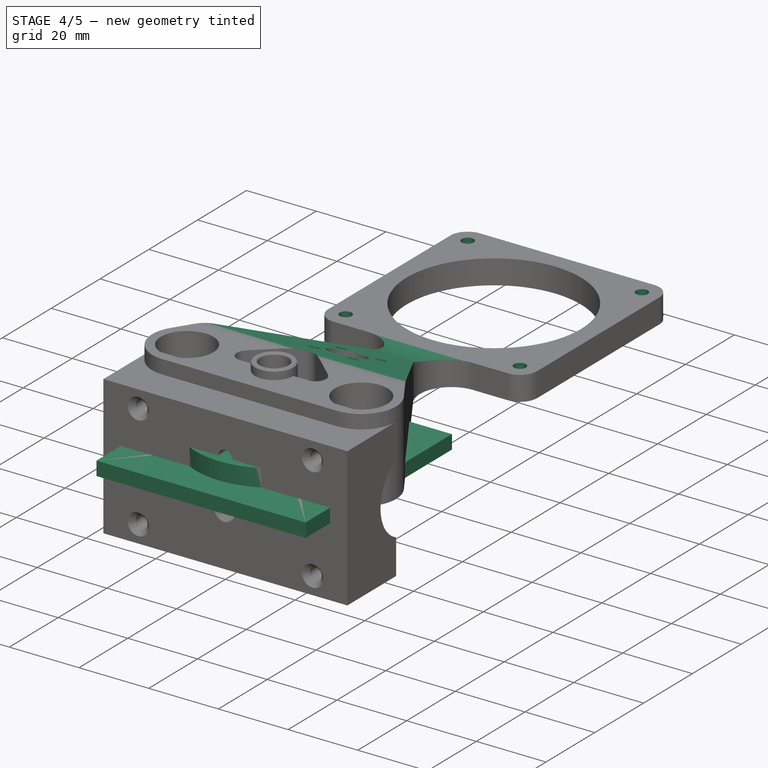
[diagram: stage 4 of 5 — iso view after this stage's code; geometry added in this stage tinted green]
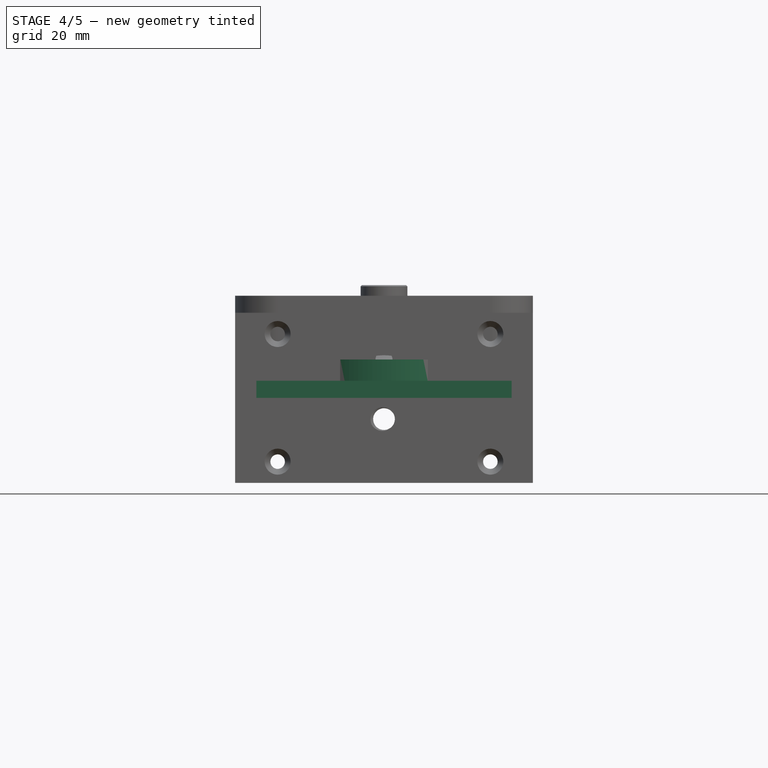
[diagram: stage 4 of 5 — front view after this stage's code; geometry added in this stage tinted green]
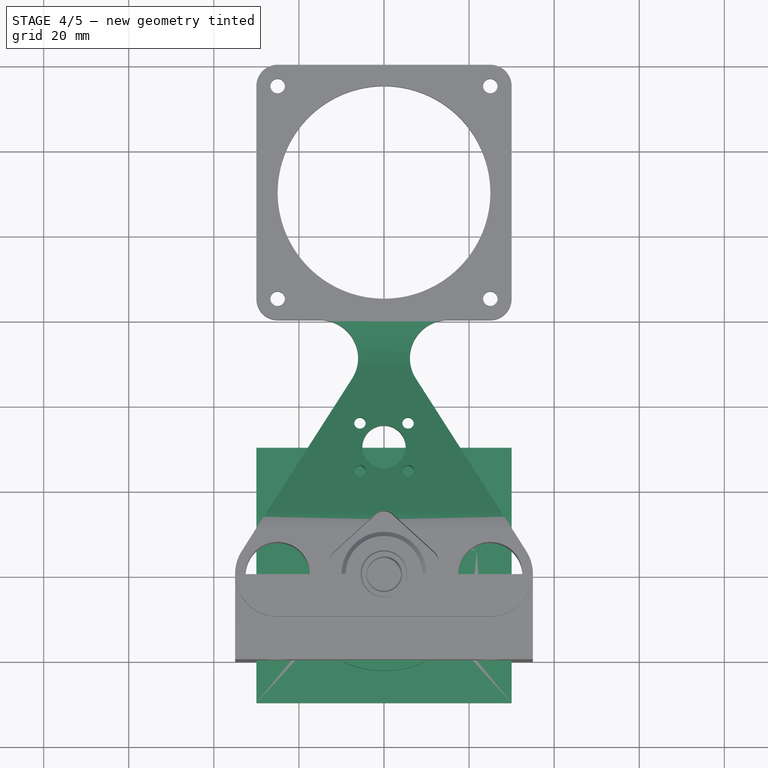
[diagram: stage 4 of 5 — top view after this stage's code; geometry added in this stage tinted green]
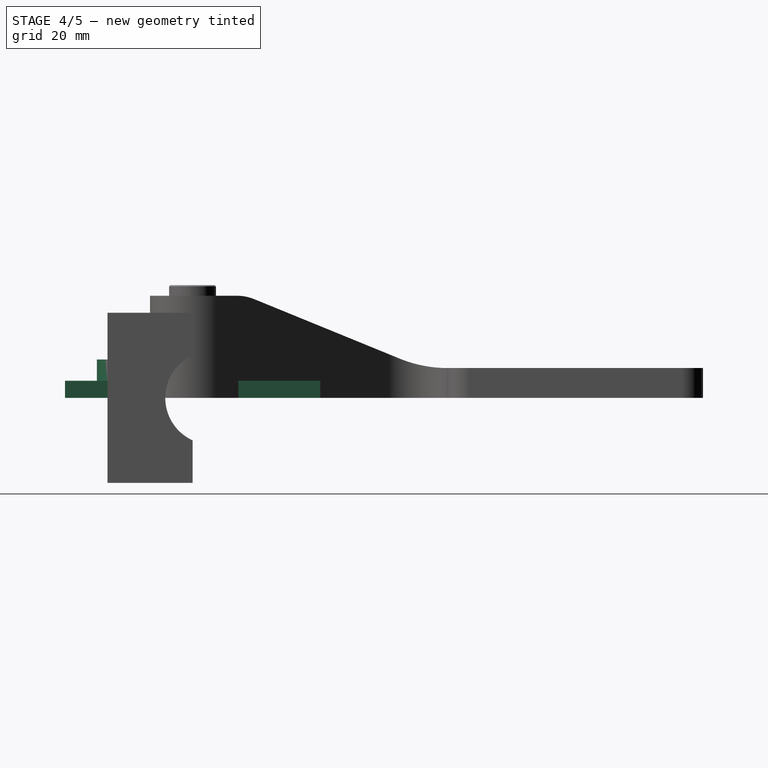
[diagram: stage 4 of 5 — right view after this stage's code; geometry added in this stage tinted green]
FEATURE [Sketcher::SketchObject] Sketch
  ArcFitTolerance = 1e-06
  AttachmentSupport = -> [XY_Plane]
  FullyConstrained = true
  MakeInternals = false
  MapMode = 5
  sketch-geometry (5):
    g0: LineSegment StartX=-30 StartY=30 StartZ=0 EndX=-30 EndY=-30 EndZ=0
    g1: LineSegment StartX=-30 StartY=-30 StartZ=0 EndX=30 EndY=-30 EndZ=0
    g2: LineSegment StartX=30 StartY=-30 StartZ=0 EndX=30 EndY=30 EndZ=0
    g3: LineSegment StartX=30 StartY=30 StartZ=0 EndX=-30 EndY=30 EndZ=0
    g4: GeomPoint [constr] X=0 Y=0 Z=0
  constraints (12):
    c: Coincident(g0,g1)
    c: Coincident(g1,g2)
    c: Coincident(g2,g3)
    c: Coincident(g3,g0)
    c: Vertical(g0)
    c: Vertical(g2)
    c: Horizontal(g1)
    c: Horizontal(g3)
    c: Symmetric(g2,g0,g4)
    c: Coincident(g4,g-1)
    c: DistanceX(g3,g3) = 60
    c: Equal(g3,g0)
FEATURE [PartDesign::Pad] Pad
  Direction = (0,0,1)
  Length = 4
  Length2 = 10
  Profile = -> Sketch
  ReferenceAxis = -> Sketch [N_Axis]
  Suppressed = false
  Type = 0
FEATURE [Sketcher::SketchObject] Sketch001
  ArcFitTolerance = 1e-06
  AttachmentSupport = -> [Pad]
  FullyConstrained = true
  MakeInternals = false
  MapMode = 5
  Placement = pos=(0,0,4) rot=(0,0,1;0rad)
  sketch-geometry (1):
    g0: Circle CenterX=0 CenterY=0 CenterZ=0 NormalX=0 NormalY=0 NormalZ=1 AngleXU=0 Radius=22.5
  constraints (2):
    c: Coincident(g0,g-1)
    c: Diameter(g0) = 45
FEATURE [PartDesign::Pad] Pad001
  BaseFeature = -> Pad
  Direction = (0,0,1)
  Length = 5
  Length2 = 10
  Profile = -> Sketch001
  ReferenceAxis = -> Sketch001 [N_Axis]
  Suppressed = false
  Type = 0
FEATURE [Sketcher::SketchObject] Sketch021
  ArcFitTolerance = 1e-06
  AttachmentSupport = -> [YZ_Plane004]
  ExternalGeometry = -> [Pad010]
  FullyConstrained = true
  MakeInternals = false
  MapMode = 5
  Placement = pos=(0,0,0) rot=(0.57735,0.57735,0.57735;2.0944rad)
  sketch-geometry (6):
    g0: LineSegment StartX=12.525 StartY=24 StartZ=0 EndX=60 EndY=24 EndZ=0
    g1: LineSegment StartX=60 StartY=24 StartZ=0 EndX=60 EndY=7 EndZ=0
    g2: LineSegment StartX=12.525 StartY=24 StartZ=0 EndX=48.6465 EndY=9.23135 EndZ=0
    g3: ArcOfCircle CenterX=60 CenterY=37 CenterZ=0 NormalX=0 NormalY=0 NormalZ=1 AngleXU=0 Radius=30 StartAngle=4.32427 EndAngle=4.71239
    g4: GeomPoint [constr] X=56.0827 Y=6.19101 Z=0
    g5: LineSegment [constr] StartX=60 StartY=7 StartZ=0 EndX=0 EndY=7 EndZ=0
  constraints (15):
    c: PointOnObject(g0,g-3)
    c: DistanceX(g-3,g0) = 5
    c: Coincident(g0,g-4)
    c: Coincident(g1,g0)
    c: Coincident(g2,g0)
    c: Coincident(g-4,g1)
    c: Distance(g4,g1) = 4
    c: PointOnObject(g4,g2)
    c: Tangent(g2,g3) = -1.5708
    c: Radius(g3) = 30
    c: Coincident(g1,g3)
    c: Coincident(g5,g1)
    c: Horizontal(g5)
    c: PointOnObject(g5,g-2)
    c: Tangent(g3,g5)
FEATURE [PartDesign::Pocket] Pocket006
  BaseFeature = -> Pad010
  Direction = (-1,0,0)
  Length = 5
  Length2 = 5
  Midplane = true
  Profile = -> Sketch021
  ReferenceAxis = -> Sketch021 [N_Axis]
  Suppressed = false
  Type = 1
FEATURE [PartDesign::Fillet] Fillet002
  Base = -> Pocket006 [Edge131,Edge132]
  BaseFeature = -> Pocket006
  Radius = 11
  SupportTransform = false
  Suppressed = false
  UseAllEdges = false
FEATURE [Sketcher::SketchObject] Sketch022
  ArcFitTolerance = 1e-06
  AttachmentSupport = -> [Fillet002]
  ExternalGeometry = -> [Fillet002]
  FullyConstrained = true
  MakeInternals = false
  MapMode = 5
  Placement = pos=(0,0,0) rot=(1,0,0;3.14159rad)
  sketch-geometry (1):
    g0: Circle CenterX=0 CenterY=-30 CenterZ=0 NormalX=0 NormalY=0 NormalZ=1 AngleXU=0 Radius=11.05
  constraints (2):
    c: Coincident(g0,g-3)
    c: Diameter(g0) = 22.1
FEATURE [PartDesign::Pocket] Pocket007
  BaseFeature = -> Fillet002
  Direction = (0,0,1)
  Length = 3.7
  Length2 = 5
  Profile = -> Sketch022
  ReferenceAxis = -> Sketch022 [N_Axis]
  Suppressed = false
  Type = 0
FEATURE [Sketcher::SketchObject] Sketch023
  ArcFitTolerance = 1e-06
  AttachmentSupport = -> [Pocket007]
  ExternalGeometry = -> [Pocket007]
  FullyConstrained = true
  MakeInternals = false
  MapMode = 5
  Placement = pos=(0,0,3.7) rot=(1,0,0;3.14159rad)
  sketch-geometry (6):
    g0: Circle CenterX=-5.65685 CenterY=-24.3431 CenterZ=0 NormalX=0 NormalY=0 NormalZ=1 AngleXU=0 Radius=1.35
    g1: Circle CenterX=5.65685 CenterY=-24.3431 CenterZ=0 NormalX=0 NormalY=0 NormalZ=1 AngleXU=0 Radius=1.35
    g2: Circle CenterX=5.65685 CenterY=-35.6569 CenterZ=0 NormalX=0 NormalY=0 NormalZ=1 AngleXU=0 Radius=1.35
    g3: Circle CenterX=-5.65685 CenterY=-35.6569 CenterZ=0 NormalX=0 NormalY=0 NormalZ=1 AngleXU=0 Radius=1.35
    g4: LineSegment [constr] StartX=-5.65685 StartY=-24.3431 StartZ=0 EndX=5.65685 EndY=-35.6569 EndZ=0
    g5: LineSegment [constr] StartX=-5.65685 StartY=-35.6569 StartZ=0 EndX=5.65685 EndY=-24.3431 EndZ=0
  constraints (13):
    c: Equal(g3,g0)
    c: Equal(g0,g1)
    c: Equal(g1,g2)
    c: Symmetric(g0,g1,g-2)
    c: Symmetric(g3,g2,g-2)
    c: Diameter(g1) = 2.7
    c: Symmetric(g0,g2,g-3)
    c: Distance(g3,g1) = 16
    c: Coincident(g4,g0)
    c: Coincident(g4,g2)
    c: Coincident(g5,g3)
    c: Coincident(g5,g1)
    c: Angle(g4,g5) = 1.5708
FEATURE [PartDesign::Pocket] Pocket008
  BaseFeature = -> Pocket007
  Direction = (0,0,1)
  Length = 5
  Length2 = 5
  Profile = -> Sketch023
  ReferenceAxis = -> Sketch023 [N_Axis]
  Suppressed = false
  Type = 1
FEATURE [PartDesign::Plane] DatumPlane
  AttachmentOffset = pos=(0,0,0) rot=(0,1,0;0.610865rad)
  AttachmentSupport = -> [XZ_Plane004]
  Length = 157.264
  MapMode = 5
  Placement = pos=(0,0,0) rot=(0.913318,0.287968,0.287968;1.66134rad)
  ResizeMode = 0
  Width = 66.7631
FEATURE [Sketcher::SketchObject] Sketch024
  ArcFitTolerance = 1e-06
  AttachmentSupport = -> [DatumPlane]
  ExternalGeometry = -> [Pocket008]
  FullyConstrained = true
  MakeInternals = false
  MapMode = 5
  Placement = pos=(0,0,0) rot=(0.913318,0.287968,0.287968;1.66134rad)
  sketch-geometry (3):
    g0: LineSegment [constr] StartX=-28.0038 StartY=24 StartZ=0 EndX=-12.9538 EndY=-3.6e-15 EndZ=0
    g1: LineSegment [constr] StartX=-28.0038 StartY=-2.1e-15 StartZ=0 EndX=-12.9538 EndY=24 EndZ=0
    g2: Circle CenterX=-20.4788 CenterY=12 CenterZ=0 NormalX=0 NormalY=0 NormalZ=1 AngleXU=0 Radius=1.35
  constraints (7):
    c: Coincident(g0,g-4)
    c: Coincident(g0,g-3)
    c: Coincident(g1,g-3)
    c: Coincident(g1,g-4)
    c: PointOnObject(g2,g0)
    c: Diameter(g2) = 2.7
    c: PointOnObject(g2,g1)
FEATURE [PartDesign::Pocket] Pocket009
  BaseFeature = -> Pocket008
  Direction = (-0.573576,0.819152,3e-16)
  Length = 8
  Length2 = 5
  Profile = -> Sketch024
  ReferenceAxis = -> Sketch024 [N_Axis]
  Suppressed = false
  Type = 0
FEATURE [PartDesign::Mirrored] Mirrored
  BaseFeature = -> Pocket009
  MirrorPlane = -> YZ_Plane004
  Originals = -> [Pocket009]
  Suppressed = false
  TransformMode = 0
FEATURE [Sketcher::SketchObject] Sketch025
  ArcFitTolerance = 1e-06
  AttachmentSupport = -> [Mirrored]
  ExternalGeometry = -> [Mirrored]
  FullyConstrained = true
  MakeInternals = false
  MapMode = 5
  Placement = pos=(0,0,0) rot=(1,0,0;3.14159rad)
  sketch-geometry (4):
    g0: Circle CenterX=-25 CenterY=-65 CenterZ=0 NormalX=0 NormalY=0 NormalZ=1 AngleXU=0 Radius=1.35
    g1: Circle CenterX=25 CenterY=-65 CenterZ=0 NormalX=0 NormalY=0 NormalZ=1 AngleXU=0 Radius=1.35
    g2: Circle CenterX=25 CenterY=-115 CenterZ=0 NormalX=0 NormalY=0 NormalZ=1 AngleXU=0 Radius=1.35
    g3: Circle CenterX=-25 CenterY=-115 CenterZ=0 NormalX=0 NormalY=0 NormalZ=1 AngleXU=0 Radius=1.35
  constraints (8):
    c: Coincident(g0,g-3)
    c: Equal(g0,g-3)
    c: Coincident(g1,g-4)
    c: Equal(g1,g-4)
    c: Coincident(g2,g-5)
    c: Equal(g2,g-5)
    c: Coincident(g3,g-6)
    c: Equal(g3,g-6)
FEATURE [PartDesign::Hole] Hole002
  BaseFeature = -> Mirrored
  CustomThreadClearance = 0
  Depth = 25
  DepthType = 0
  Diameter = 3.4
  DrillForDepth = false
  DrillPoint = 1
  DrillPointAngle = 118
  HoleCutCountersinkAngle = 90
  HoleCutCustomValues = false
  HoleCutDepth = 0
  HoleCutDiameter = 6.1
  HoleCutType = 2
  ModelThread = false
  Profile = -> Sketch025
  Suppressed = false
  Tapered = false
  TaperedAngle = 90
  ThreadClass = 0
  ThreadDepth = 25
  ThreadDepthType = 0
  ThreadDirection = 0
  ThreadFit = 0
  ThreadSize = 9
  ThreadType = 1
  Threaded = false
  UseCustomThreadClearance = false
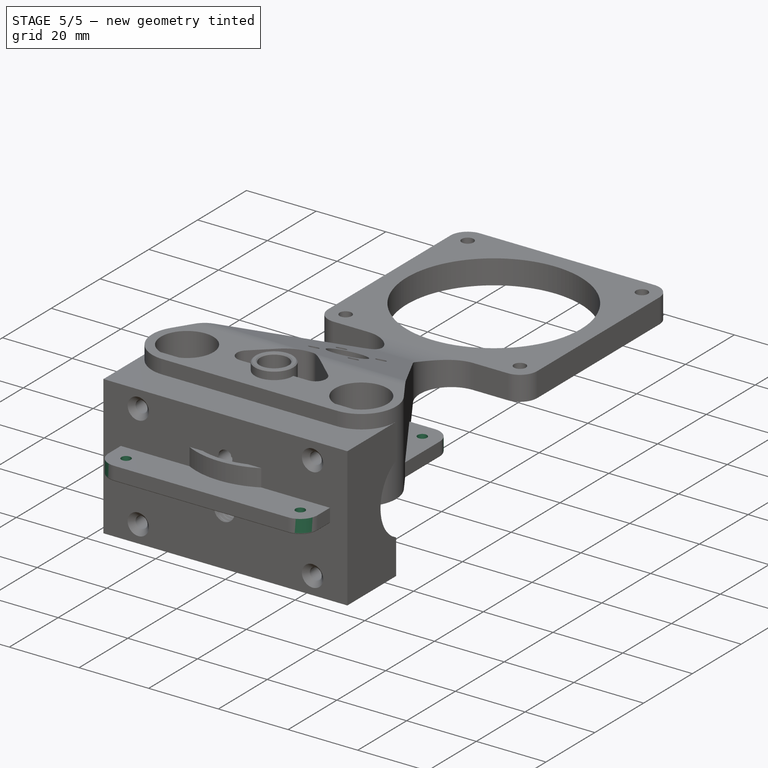
[diagram: stage 5 of 5 — iso view after this stage's code; geometry added in this stage tinted green]
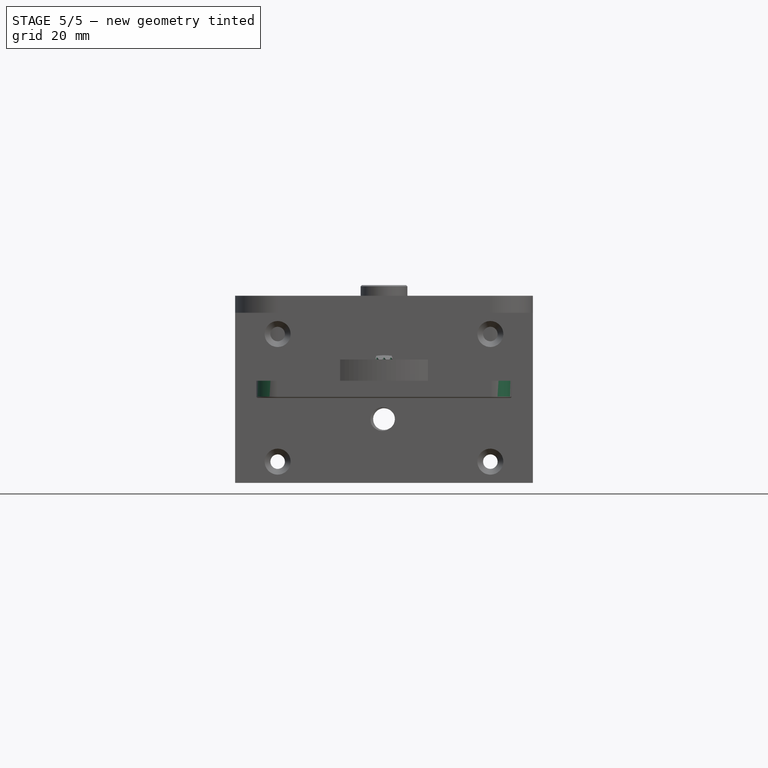
[diagram: stage 5 of 5 — front view after this stage's code; geometry added in this stage tinted green]
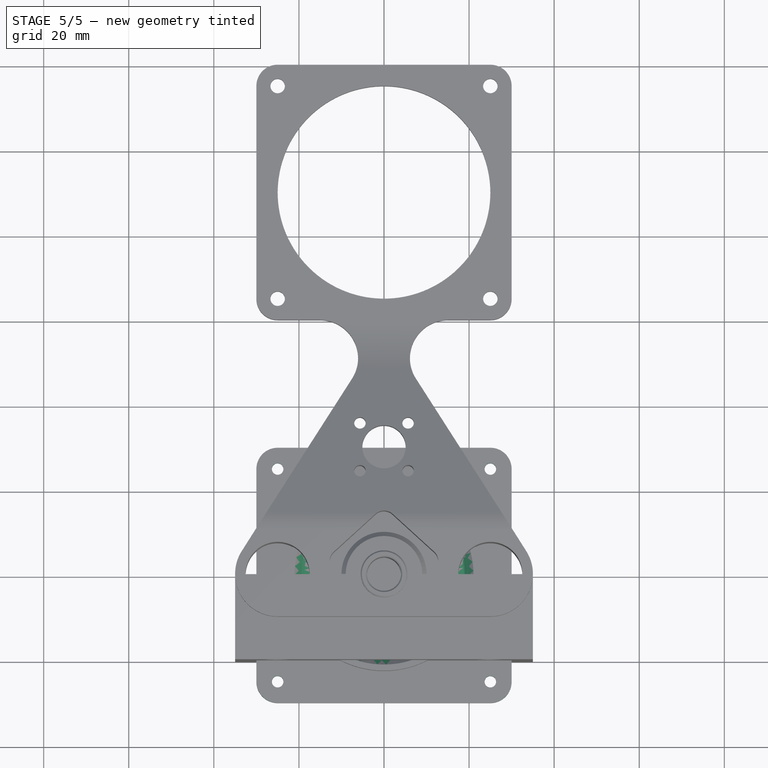
[diagram: stage 5 of 5 — top view after this stage's code; geometry added in this stage tinted green]
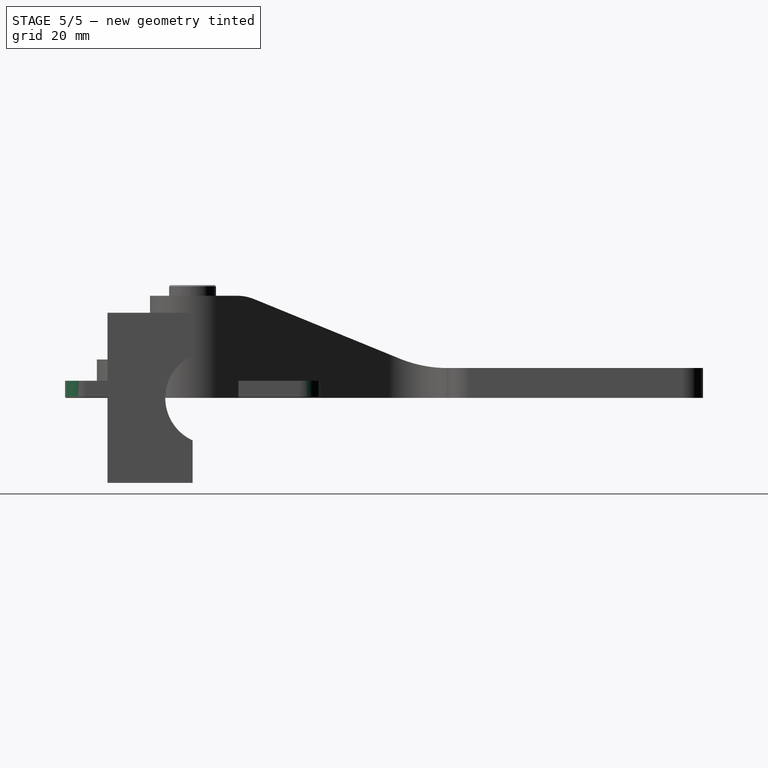
[diagram: stage 5 of 5 — right view after this stage's code; geometry added in this stage tinted green]
FEATURE [Sketcher::SketchObject] Sketch002
  ArcFitTolerance = 1e-06
  AttachmentSupport = -> [Pad001]
  FullyConstrained = true
  MakeInternals = false
  MapMode = 5
  Placement = pos=(0,0,9) rot=(0,0,1;0rad)
  sketch-geometry (1):
    g0: Circle CenterX=0 CenterY=0 CenterZ=0 NormalX=0 NormalY=0 NormalZ=1 AngleXU=0 Radius=19.5
  constraints (2):
    c: Coincident(g0,g-1)
    c: Diameter(g0) = 39
FEATURE [PartDesign::Hole] Hole
  BaseFeature = -> Pad001
  CustomThreadClearance = 0
  Depth = 25
  DepthType = 0
  Diameter = 37.5
  DrillForDepth = false
  DrillPoint = 1
  DrillPointAngle = 118
  HoleCutCountersinkAngle = 90
  HoleCutCustomValues = false
  HoleCutDepth = 0.5
  HoleCutDiameter = 42.1
  HoleCutType = 2
  ModelThread = false
  Profile = -> Sketch002
  Suppressed = false
  Tapered = false
  TaperedAngle = 90
  ThreadClass = 0
  ThreadDepth = 25
  ThreadDepthType = 0
  ThreadDirection = 0
  ThreadFit = 0
  ThreadSize = 73
  ThreadType = 2
  Threaded = true
  UseCustomThreadClearance = false
FEATURE [Sketcher::SketchObject] Sketch003
  ArcFitTolerance = 1e-06
  AttachmentSupport = -> [XZ_Plane]
  FullyConstrained = true
  MakeInternals = false
  MapMode = 5
  Placement = pos=(0,0,0) rot=(1,0,0;1.5708rad)
  sketch-geometry (6):
    g0: LineSegment StartX=18.8539 StartY=12 StartZ=0 EndX=19.7 EndY=12.4885 EndZ=0
    g1: LineSegment StartX=18.8539 StartY=12.977 StartZ=0 EndX=19.7 EndY=12.4885 EndZ=0
    g2: LineSegment [constr] StartX=-22.5 StartY=12 StartZ=0 EndX=22.5 EndY=12 EndZ=0
    g3: LineSegment StartX=18.8539 StartY=12 StartZ=0 EndX=16.8539 EndY=12 EndZ=0
    g4: LineSegment StartX=16.8539 StartY=12 StartZ=0 EndX=16.8539 EndY=12.977 EndZ=0
    g5: LineSegment StartX=16.8539 StartY=12.977 StartZ=0 EndX=18.8539 EndY=12.977 EndZ=0
  constraints (17):
    c: Coincident(g1,g0)
    c: Equal(g1,g0)
    c: Angle(g1,g0) = 1.0472
    c: Distance(g0,g-2) = 19.7
    c: Coincident(g2,g-3)
    c: Coincident(g2,g-3)
    c: PointOnObject(g0,g2)
    c: Distance(g1,g0) = 0.977
    c: PointOnObject(g3,g2)
    c: Vertical(g4)
    c: Coincident(g5,g4)
    c: Coincident(g5,g1)
    c: Horizontal(g5)
    c: Coincident(g0,g3)
    c: DistanceX(g5,g5) = 2
    c: Coincident(g4,g3)
    c: Vertical(g1,g0)
FEATURE [PartDesign::SubtractiveHelix] SubtractiveHelix
  Angle = 0
  Axis = (0,2e-16,1)
  Base = (0,0,0)
  BaseFeature = -> Hole
  Growth = 0
  HasBeenEdited = true
  Height = 11
  LeftHanded = false
  Mode = 0
  Outside = false
  Pitch = 0.977
  Profile = -> Sketch003
  ReferenceAxis = -> Sketch003 [V_Axis]
  Reversed = true
  Suppressed = false
  Tolerance = 0.1
  Turns = 11.259
FEATURE [PartDesign::Fillet] Fillet
  Base = -> SubtractiveHelix [Edge5,Edge8,Edge2,Edge1]
  BaseFeature = -> SubtractiveHelix
  Radius = 5
  SupportTransform = false
  Suppressed = false
  UseAllEdges = false
FEATURE [Sketcher::SketchObject] Sketch004
  ArcFitTolerance = 1e-06
  AttachmentSupport = -> [Fillet]
  ExternalGeometry = -> [Fillet]
  FullyConstrained = true
  MakeInternals = false
  MapMode = 5
  Placement = pos=(0,0,4) rot=(0,0,1;0rad)
  sketch-geometry (4):
    g0: Circle CenterX=-25 CenterY=25 CenterZ=0 NormalX=0 NormalY=0 NormalZ=1 AngleXU=0 Radius=1.25
    g1: Circle CenterX=25 CenterY=25 CenterZ=0 NormalX=0 NormalY=0 NormalZ=1 AngleXU=0 Radius=1.25
    g2: Circle CenterX=-25 CenterY=-25 CenterZ=0 NormalX=0 NormalY=0 NormalZ=1 AngleXU=0 Radius=1.25
    g3: Circle CenterX=25 CenterY=-25 CenterZ=0 NormalX=0 NormalY=0 NormalZ=1 AngleXU=0 Radius=1.25
  constraints (9):
    c: Equal(g0,g1)
    c: Equal(g1,g3)
    c: Equal(g3,g2)
    c: Symmetric(g0,g1,g-2)
    c: Symmetric(g2,g3,g-2)
    c: Symmetric(g2,g0,g-1)
    c: Distance(g0,g-4) = 5
    c: Distance(g0,g-3) = 5
    c: Diameter(g0) = 2.5
FEATURE [PartDesign::Hole] Hole001
  BaseFeature = -> Fillet
  CustomThreadClearance = 0
  Depth = 172.364
  DepthType = 1
  Diameter = 2.7
  DrillForDepth = false
  DrillPoint = 1
  DrillPointAngle = 118
  HoleCutCountersinkAngle = 90
  HoleCutCustomValues = false
  HoleCutDepth = 0
  HoleCutDiameter = 6.1
  HoleCutType = 0
  ModelThread = false
  Profile = -> Sketch004
  Suppressed = false
  Tapered = false
  TaperedAngle = 90
  ThreadClass = 0
  ThreadDepth = 172.364
  ThreadDepthType = 0
  ThreadDirection = 0
  ThreadFit = 0
  ThreadSize = 0
  ThreadType = 0
  Threaded = false
  UseCustomThreadClearance = false
FEATURE [Sketcher::SketchObject] Sketch005
  ArcFitTolerance = 1e-06
  AttachmentSupport = -> [Hole001]
  ExternalGeometry = -> [Hole001]
  FullyConstrained = true
  MakeInternals = false
  MapMode = 5
  Placement = pos=(0,0,0) rot=(1,0,0;3.14159rad)
  sketch-geometry (2):
    g0: Circle CenterX=0 CenterY=0 CenterZ=0 NormalX=0 NormalY=0 NormalZ=1 AngleXU=0 Radius=17.5
    g1: Circle CenterX=0 CenterY=0 CenterZ=0 NormalX=0 NormalY=0 NormalZ=1 AngleXU=0 Radius=18.75
  constraints (4):
    c: Coincident(g0,g-1)
    c: Coincident(g1,g0)
    c: Equal(g1,g-3)
    c: Diameter(g0) = 35
FEATURE [PartDesign::Pad] Pad002
  BaseFeature = -> Hole001
  Direction = (0,0,-1)
  Length = 1
  Length2 = 10
  Profile = -> Sketch005
  ReferenceAxis = -> Sketch005 [N_Axis]
  Reversed = true
  Suppressed = false
  Type = 0
FEATURE [PartDesign::Fillet] Fillet001
  Base = -> Pad002 [Face2,Face14]
  BaseFeature = -> Pad002
  Radius = 0.3
  SupportTransform = false
  Suppressed = false
  UseAllEdges = false
FEATURE [PartDesign::Pocket] Pocket002
  BaseFeature = -> Chamfer001
  Direction = (0,0,-1)
  Length = 5
  Length2 = 5
  Profile = -> Sketch011
  ReferenceAxis = -> Sketch011 [N_Axis]
  Reversed = true
  Suppressed = false
  Type = 1
FEATURE [PartDesign::PolarPattern] PolarPattern
  Angle = 360
  Axis = -> Sketch011 [N_Axis]
  BaseFeature = -> Pocket002
  Mode = 0
  Occurrences = 60
  Offset = 120
  Originals = -> [Pocket002]
  Suppressed = false
  TransformMode = 0
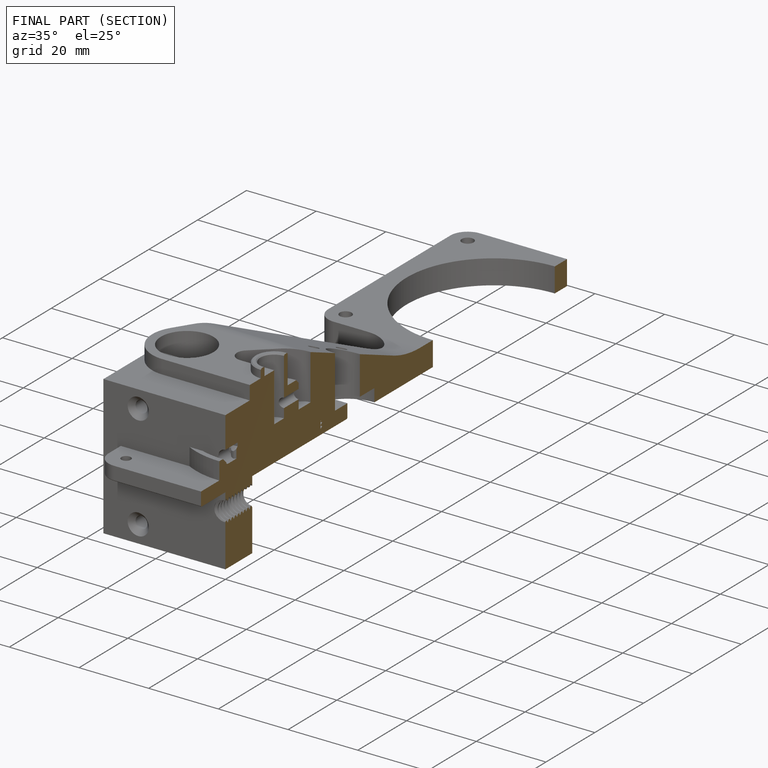
[diagram: finished part — half-section view (interior)]
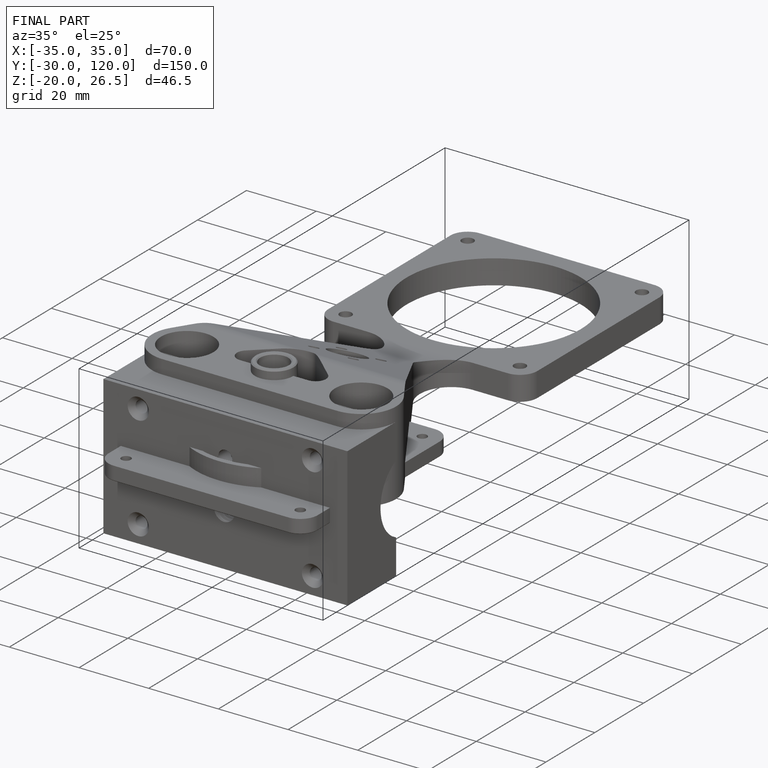
[diagram: finished part — iso view with bounding-box wireframe]
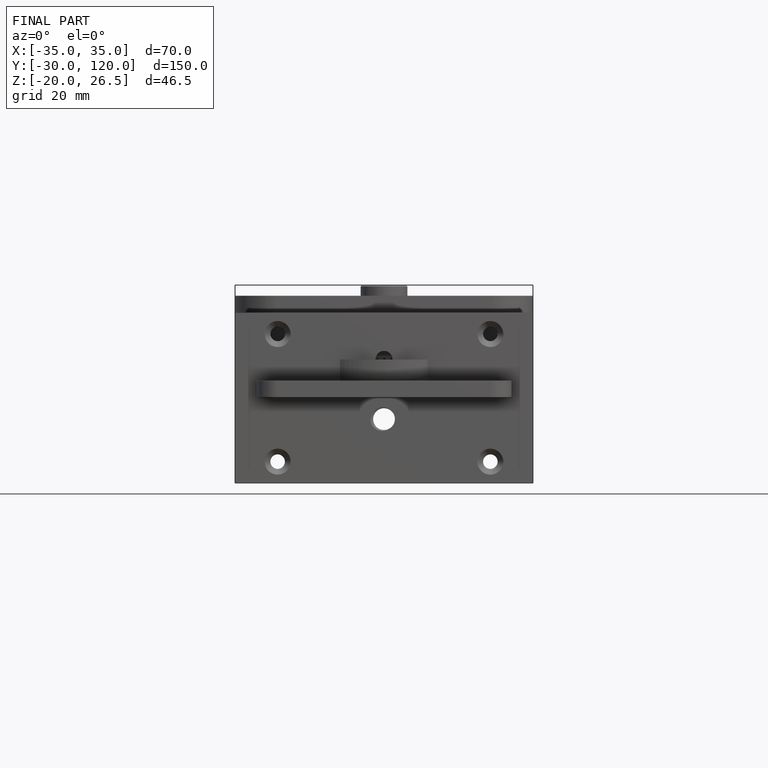
[diagram: finished part — front view with bounding-box wireframe]
